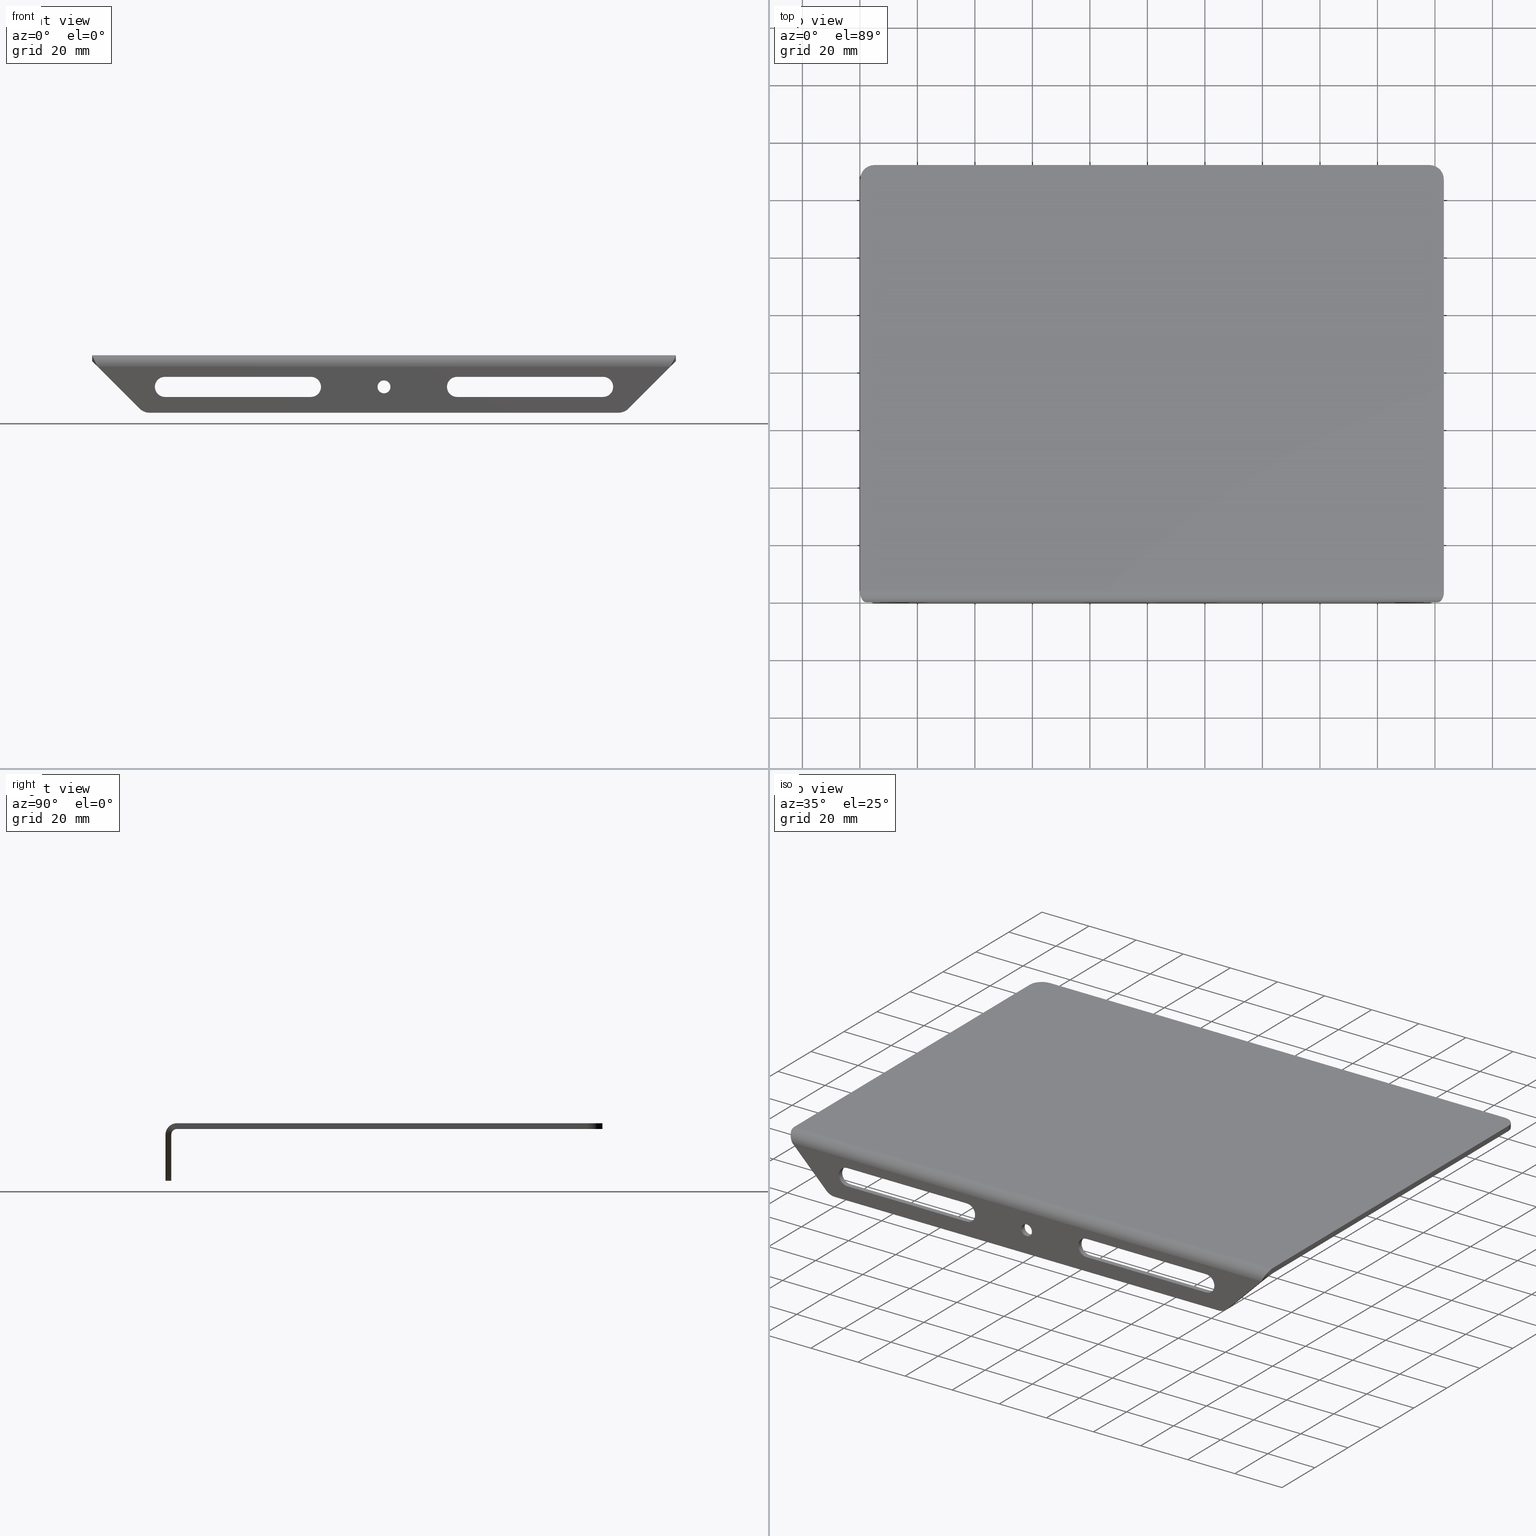
[diagram: canonical four-view strip — front | top / right | iso, engineering-drawing reading convention]
A machine part, canonical four-view strip (front | top / right | iso — engineering-drawing reading convention). The complete STEP part file that produces these views, byte-faithful:
ISO-10303-21;
HEADER;
FILE_DESCRIPTION (( 'STEP AP203' ),
    '1' );
FILE_NAME ('13.1.4.10_GZF-PDH152A_ƽ��������壬203mmx152mm.STEP',
    '2022-11-01T02:42:46',
    ( '' ),
    ( '' ),
    'SwSTEP 2.0',
    'SolidWorks 2021',
    '' );
FILE_SCHEMA (( 'CONFIG_CONTROL_DESIGN' ));
ENDSEC;

DATA;
#1 = DIRECTION ( 'NONE',  ( 0.7071067811865429098, 0.000000000000000000, 0.7071067811865522357 ) ) ;
#2 = LINE ( 'NONE', #314, #74 ) ;
#3 = CARTESIAN_POINT ( 'NONE',  ( 25.39999999999999858, 2.000000000000000000, -11.00000000000000178 ) ) ;
#4 = ORIENTED_EDGE ( 'NONE', *, *, #66, .T. ) ;
#5 = DIRECTION ( 'NONE',  ( -0.000000000000000000, 0.000000000000000000, 1.000000000000000000 ) ) ;
#6 = ORIENTED_EDGE ( 'NONE', *, *, #55, .T. ) ;
#7 = AXIS2_PLACEMENT_3D ( 'NONE', #155, #802, #425 ) ;
#8 = EDGE_CURVE ( 'NONE', #365, #279, #709, .T. ) ;
#9 = ORIENTED_EDGE ( 'NONE', *, *, #774, .T. ) ;
#10 = CARTESIAN_POINT ( 'NONE',  ( 203.0999999999999943, 146.9999999999999716, 0.000000000000000000 ) ) ;
#11 = APPROVAL_DATE_TIME ( #71, #481 ) ;
#12 = EDGE_LOOP ( 'NONE', ( #1007, #284, #832, #230 ) ) ;
#13 = CYLINDRICAL_SURFACE ( 'NONE', #338, 3.500000000000001332 ) ;
#14 = ORIENTED_EDGE ( 'NONE', *, *, #839, .T. ) ;
#15 = CARTESIAN_POINT ( 'NONE',  ( 177.7999999999999829, -8.673617379884035472E-16, -11.00000000000000178 ) ) ;
#16 = CARTESIAN_POINT ( 'NONE',  ( 76.20000000000000284, 2.000000000000000000, -7.500000000000001776 ) ) ;
#17 = VERTEX_POINT ( 'NONE', #16 ) ;
#18 = EDGE_CURVE ( 'NONE', #406, #847, #173, .T. ) ;
#19 = CARTESIAN_POINT ( 'NONE',  ( 0.09999999999981827592, 3.167333600214277567, -1.466666666666426311 ) ) ;
#20 = CIRCLE ( 'NONE', #204, 2.249999999999996891 ) ;
#21 = DIRECTION ( 'NONE',  ( -0.000000000000000000, 1.000000000000000000, -0.000000000000000000 ) ) ;
#22 = EDGE_CURVE ( 'NONE', #717, #917, #496, .T. ) ;
#23 = CARTESIAN_POINT ( 'NONE',  ( 0.09999999999997054301, 146.9999999999999432, -1.999999999999998224 ) ) ;
#24 = ORIENTED_EDGE ( 'NONE', *, *, #511, .F. ) ;
#25 = CARTESIAN_POINT ( 'NONE',  ( 199.2000000000000455, 3.999999999999999112, -7.333333333333333037 ) ) ;
#26 = VECTOR ( 'NONE', #818, 1000.000000000000000 ) ;
#27 = DIRECTION ( 'NONE',  ( -1.000000000000000000, -0.000000000000000000, -0.000000000000000000 ) ) ;
#28 = LINE ( 'NONE', #962, #241 ) ;
#29 = EDGE_LOOP ( 'NONE', ( #1017, #602, #549, #253 ) ) ;
#30 = FACE_OUTER_BOUND ( 'NONE', #157, .T. ) ;
#31 = CARTESIAN_POINT ( 'NONE',  ( 183.1289321881347405, 0.000000000000000000, -20.00000000000000000 ) ) ;
#32 = EDGE_CURVE ( 'NONE', #933, #671, #493, .T. ) ;
#33 = DIRECTION ( 'NONE',  ( -0.000000000000000000, 1.000000000000000000, -0.000000000000000000 ) ) ;
#34 = EDGE_LOOP ( 'NONE', ( #68, #643, #787, #521 ) ) ;
#35 = AXIS2_PLACEMENT_3D ( 'NONE', #951, #329, #79 ) ;
#36 = CARTESIAN_POINT ( 'NONE',  ( 203.1999999999999886, 7.999999999999999112, -2.000000000000000444 ) ) ;
#37 = FACE_OUTER_BOUND ( 'NONE', #81, .T. ) ;
#38 = VECTOR ( 'NONE', #830, 1000.000000000000000 ) ;
#39 = DIRECTION ( 'NONE',  ( -0.000000000000000000, -0.000000000000000000, 1.000000000000000000 ) ) ;
#40 = ORIENTED_EDGE ( 'NONE', *, *, #505, .T. ) ;
#41 = CARTESIAN_POINT ( 'NONE',  ( 177.7999999999999829, 2.000000000000000000, -14.50000000000000178 ) ) ;
#42 = FACE_OUTER_BOUND ( 'NONE', #454, .T. ) ;
#43 = APPROVAL_ROLE ( '' ) ;
#44 = VECTOR ( 'NONE', #909, 1000.000000000000000 ) ;
#45 = DIRECTION ( 'NONE',  ( 0.000000000000000000, 1.000000000000000000, -0.000000000000000000 ) ) ;
#46 = EDGE_LOOP ( 'NONE', ( #161, #4, #360, #874, #866, #24 ) ) ;
#47 = DIRECTION ( 'NONE',  ( 2.081668171172168908E-15, 0.000000000000000000, 1.000000000000000000 ) ) ;
#48 = CARTESIAN_POINT ( 'NONE',  ( 1.999999999999974021, 0.000000000000000000, -4.000000000000000000 ) ) ;
#49 = APPROVAL_STATUS ( 'not_yet_approved' ) ;
#50 = CYLINDRICAL_SURFACE ( 'NONE', #780, 4.000000000000000000 ) ;
#51 = APPROVAL ( #627, 'δָ��' ) ;
#52 = ORIENTED_EDGE ( 'NONE', *, *, #828, .F. ) ;
#53 = CARTESIAN_POINT ( 'NONE',  ( -4.336808689942017736E-16, -3.999999999999997335, 0.000000000000000000 ) ) ;
#54 = CARTESIAN_POINT ( 'NONE',  ( 183.1289321881347405, 2.000000000000000000, -15.00000000000000000 ) ) ;
#55 = EDGE_CURVE ( 'NONE', #589, #638, #824, .T. ) ;
#56 = CARTESIAN_POINT ( 'NONE',  ( 101.5999999999999943, 2.000000000000000000, -13.24999999999999822 ) ) ;
#57 = VERTEX_POINT ( 'NONE', #228 ) ;
#58 = CARTESIAN_POINT ( 'NONE',  ( -4.336808689942017736E-16, 3.999999999999999112, 0.000000000000000000 ) ) ;
#59 = ORGANIZATION ( 'δָ��', 'δָ��', '' ) ;
#60 = AXIS2_PLACEMENT_3D ( 'NONE', #168, #312, #567 ) ;
#61 = PERSON_AND_ORGANIZATION ( #954, #59 ) ;
#62 = CARTESIAN_POINT ( 'NONE',  ( 127.0000000000000284, -8.673617379884035472E-16, -7.500000000000002665 ) ) ;
#63 = VERTEX_POINT ( 'NONE', #474 ) ;
#64 = DIRECTION ( 'NONE',  ( -1.225259087783363897E-16, 1.000000000000000000, 0.000000000000000000 ) ) ;
#65 = CARTESIAN_POINT ( 'NONE',  ( 0.000000000000000000, 0.000000000000000000, 0.000000000000000000 ) ) ;
#66 = EDGE_CURVE ( 'NONE', #111, #150, #2, .T. ) ;
#67 = CYLINDRICAL_SURFACE ( 'NONE', #127, 3.500000000000001332 ) ;
#68 = ORIENTED_EDGE ( 'NONE', *, *, #135, .F. ) ;
#69 = ADVANCED_FACE ( 'NONE', ( #971 ), #727, .F. ) ;
#70 = CARTESIAN_POINT ( 'NONE',  ( 0.3795479008074179594, 1.049987808574508019, -0.7590958016148465770 ) ) ;
#71 = DATE_AND_TIME ( #708, #539 ) ;
#72 = DIRECTION ( 'NONE',  ( -0.000000000000000000, 1.000000000000000000, -0.000000000000000000 ) ) ;
#73 = ADVANCED_FACE ( 'NONE', ( #887, #591, #191, #512 ), #411, .F. ) ;
#74 = VECTOR ( 'NONE', #236, 1000.000000000000000 ) ;
#75 = ORIENTED_EDGE ( 'NONE', *, *, #483, .F. ) ;
#76 =( BOUNDED_SURFACE ( )  B_SPLINE_SURFACE ( 3, 3, ( 
 ( #681, #607, #985, #280 ),
 ( #53, #211, #195, #996 ),
 ( #440, #599, #130, #123 ),
 ( #759, #285, #834, #136 ),
 ( #202, #366, #990, #528 ),
 ( #686, #840, #450, #980 ),
 ( #58, #750, #274, #594 ) ),
 .UNSPECIFIED., .T., .F., .T. ) 
 B_SPLINE_SURFACE_WITH_KNOTS ( ( 4, 3, 4 ),
 ( 4, 4 ),
 ( 0.000000000000000000, 0.5000000000000000000, 1.000000000000000000 ),
 ( 0.000000000000000000, 1.000000000000000000 ),
 .UNSPECIFIED. ) 
 GEOMETRIC_REPRESENTATION_ITEM ( )  RATIONAL_B_SPLINE_SURFACE ( (
 ( 1.000000000000000000, 1.000000000000000000, 1.000000000000000000, 1.000000000000000000),
 ( 0.3333333333333333703, 0.3333333333333333148, 0.3333333333333333148, 0.3333333333333333703),
 ( 0.3333333333333333703, 0.3333333333333333148, 0.3333333333333333148, 0.3333333333333333703),
 ( 1.000000000000000000, 1.000000000000000000, 1.000000000000000000, 1.000000000000000000),
 ( 0.3333333333333333703, 0.3333333333333333148, 0.3333333333333333148, 0.3333333333333333703),
 ( 0.3333333333333333703, 0.3333333333333333148, 0.3333333333333333148, 0.3333333333333333703),
 ( 1.000000000000000000, 1.000000000000000000, 1.000000000000000000, 1.000000000000000000) ) ) 
 REPRESENTATION_ITEM ( '' )  SURFACE ( )  );
#77 = CARTESIAN_POINT ( 'NONE',  ( 203.0999999999999091, 3.167333600213670497, -1.466666666666625707 ) ) ;
#78 = VERTEX_POINT ( 'NONE', #981 ) ;
#79 = DIRECTION ( 'NONE',  ( -1.000000000000000000, 0.000000000000000000, 3.414809992080329023E-17 ) ) ;
#80 = VERTEX_POINT ( 'NONE', #356 ) ;
#81 = EDGE_LOOP ( 'NONE', ( #843, #827, #316, #185, #612, #140 ) ) ;
#82 = PLANE ( 'NONE',  #298 ) ;
#83 = ORIENTED_EDGE ( 'NONE', *, *, #433, .F. ) ;
#84 = AXIS2_PLACEMENT_3D ( 'NONE', #426, #494, #438 ) ;
#85 = ORIENTED_EDGE ( 'NONE', *, *, #653, .F. ) ;
#86 = AXIS2_PLACEMENT_3D ( 'NONE', #396, #482, #92 ) ;
#87 = DIRECTION ( 'NONE',  ( 0.000000000000000000, 0.000000000000000000, -1.000000000000000000 ) ) ;
#88 = ORIENTED_EDGE ( 'NONE', *, *, #232, .F. ) ;
#89 = APPROVAL_PERSON_ORGANIZATION ( #61, #882, #43 ) ;
#90 = AXIS2_PLACEMENT_3D ( 'NONE', #640, #407, #934 ) ;
#91 = ORIENTED_EDGE ( 'NONE', *, *, #784, .T. ) ;
#92 = DIRECTION ( 'NONE',  ( 0.000000000000000000, 0.000000000000000000, 1.000000000000000000 ) ) ;
#93 = CARTESIAN_POINT ( 'NONE',  ( 201.2000000000000171, 0.000000000000000000, -4.000000000000000000 ) ) ;
#94 = CARTESIAN_POINT ( 'NONE',  ( 76.20000000000000284, -8.673617379884035472E-16, -14.50000000000000178 ) ) ;
#95 = ORIENTED_EDGE ( 'NONE', *, *, #621, .F. ) ;
#96 = ADVANCED_FACE ( 'NONE', ( #37 ), #349, .F. ) ;
#97 = DIRECTION ( 'NONE',  ( -0.000000000000000000, 1.000000000000000000, -0.000000000000000000 ) ) ;
#98 = LINE ( 'NONE', #103, #421 ) ;
#99 = CARTESIAN_POINT ( 'NONE',  ( 177.7999999999999829, -8.673617379884035472E-16, -14.50000000000000178 ) ) ;
#100 = ORIENTED_EDGE ( 'NONE', *, *, #706, .T. ) ;
#101 = CARTESIAN_POINT ( 'NONE',  ( 199.2000000000000455, 3.999999999999999112, -8.000000000000000000 ) ) ;
#102 = CIRCLE ( 'NONE', #987, 5.000000000000000888 ) ;
#103 = CARTESIAN_POINT ( 'NONE',  ( 25.39999999999999858, -8.673617379884035472E-16, -14.50000000000000000 ) ) ;
#104 = DIRECTION ( 'NONE',  ( 1.000000000000000000, 0.000000000000000000, 1.707404996040164512E-17 ) ) ;
#105 = ORIENTED_EDGE ( 'NONE', *, *, #692, .T. ) ;
#106 = CARTESIAN_POINT ( 'NONE',  ( 199.2000000000000739, 0.000000000000000000, -6.000000000000000888 ) ) ;
#107 = EDGE_CURVE ( 'NONE', #1000, #406, #423, .T. ) ;
#108 = DIRECTION ( 'NONE',  ( 0.000000000000000000, -0.000000000000000000, 1.000000000000000000 ) ) ;
#109 = VECTOR ( 'NONE', #690, 1000.000000000000000 ) ;
#110 = CARTESIAN_POINT ( 'NONE',  ( 203.0999999999999943, 3.999999999999997335, -2.000000000000000000 ) ) ;
#111 = VERTEX_POINT ( 'NONE', #669 ) ;
#112 = CARTESIAN_POINT ( 'NONE',  ( 203.2000000000000171, -2.666666666666667851, -0.6666666666666662966 ) ) ;
#113 = EDGE_CURVE ( 'NONE', #854, #365, #102, .T. ) ;
#114 = DIRECTION ( 'NONE',  ( -1.000000000000000000, -0.000000000000000000, -0.000000000000000000 ) ) ;
#115 = CARTESIAN_POINT ( 'NONE',  ( 5.100000000000005862, 151.9999999999999716, -1.999999999999998224 ) ) ;
#116 = VERTEX_POINT ( 'NONE', #31 ) ;
#117 = CIRCLE ( 'NONE', #534, 2.000000000000000000 ) ;
#118 = CARTESIAN_POINT ( 'NONE',  ( 203.2000000000000171, 10.66666666666667140, -0.6666666666666676289 ) ) ;
#119 = LINE ( 'NONE', #902, #908 ) ;
#120 = CIRCLE ( 'NONE', #86, 2.249999999999996891 ) ;
#121 = DIRECTION ( 'NONE',  ( 0.000000000000000000, 1.000000000000000000, 0.000000000000000000 ) ) ;
#122 = ORIENTED_EDGE ( 'NONE', *, *, #839, .F. ) ;
#123 = CARTESIAN_POINT ( 'NONE',  ( 3.999999999999948930, 2.602085213965210247E-15, -6.000000000000000888 ) ) ;
#124 = DIRECTION ( 'NONE',  ( 0.000000000000000000, 0.000000000000000000, 1.000000000000000000 ) ) ;
#125 = AXIS2_PLACEMENT_3D ( 'NONE', #132, #367, #225 ) ;
#126 = DATE_AND_TIME ( #537, #401 ) ;
#127 = AXIS2_PLACEMENT_3D ( 'NONE', #296, #597, #214 ) ;
#128 = CARTESIAN_POINT ( 'NONE',  ( 5.100000000000005862, 151.9999999999999716, 0.000000000000000000 ) ) ;
#129 = ORIENTED_EDGE ( 'NONE', *, *, #383, .F. ) ;
#130 = CARTESIAN_POINT ( 'NONE',  ( 3.999999999999949818, -1.333333333333331261, -6.666666666666671404 ) ) ;
#131 = ADVANCED_FACE ( 'NONE', ( #42 ), #276, .T. ) ;
#132 = CARTESIAN_POINT ( 'NONE',  ( 203.1999999999999886, 0.000000000000000000, 0.000000000000000000 ) ) ;
#133 = DIRECTION ( 'NONE',  ( -1.000000000000000000, -0.000000000000000000, -0.000000000000000000 ) ) ;
#134 = ORIENTED_EDGE ( 'NONE', *, *, #784, .F. ) ;
#135 = EDGE_CURVE ( 'NONE', #545, #57, #20, .T. ) ;
#136 = CARTESIAN_POINT ( 'NONE',  ( 3.999999999999948042, 3.999999999999999112, -6.000000000000000000 ) ) ;
#137 = CARTESIAN_POINT ( 'NONE',  ( 198.0999999999999659, 152.0000000000000000, 0.000000000000000000 ) ) ;
#138 = PERSON_AND_ORGANIZATION_ROLE ( 'design_owner' ) ;
#139 = LINE ( 'NONE', #921, #959 ) ;
#140 = ORIENTED_EDGE ( 'NONE', *, *, #871, .F. ) ;
#141 = CC_DESIGN_APPROVAL ( #51, ( #794 ) ) ;
#142 = DIRECTION ( 'NONE',  ( -3.414809992080330256E-17, 0.000000000000000000, -1.000000000000000000 ) ) ;
#143 = EDGE_CURVE ( 'NONE', #332, #439, #654, .T. ) ;
#144 = CARTESIAN_POINT ( 'NONE',  ( 5.100000000000005862, 151.9999999999999716, -20.00100000000000122 ) ) ;
#145 = EDGE_CURVE ( 'NONE', #598, #111, #578, .T. ) ;
#146 = ORIENTED_EDGE ( 'NONE', *, *, #205, .T. ) ;
#147 = CARTESIAN_POINT ( 'NONE',  ( 198.0999999999999943, 147.0000000000000000, -1.999999999999998224 ) ) ;
#148 = EDGE_CURVE ( 'NONE', #924, #17, #119, .T. ) ;
#149 = LINE ( 'NONE', #62, #476 ) ;
#150 = VERTEX_POINT ( 'NONE', #197 ) ;
#151 = DIRECTION ( 'NONE',  ( 0.000000000000000000, -1.000000000000000000, -0.000000000000000000 ) ) ;
#152 = VERTEX_POINT ( 'NONE', #519 ) ;
#153 = PLANE ( 'NONE',  #35 ) ;
#154 = APPROVAL_ROLE ( '' ) ;
#155 = CARTESIAN_POINT ( 'NONE',  ( 101.5999999999999943, -8.673617379884035472E-16, -11.00000000000000178 ) ) ;
#156 = AXIS2_PLACEMENT_3D ( 'NONE', #344, #451, #124 ) ;
#157 = EDGE_LOOP ( 'NONE', ( #176, #984, #83, #989 ) ) ;
#158 = DIRECTION ( 'NONE',  ( 0.000000000000000000, 1.000000000000000000, -0.000000000000000000 ) ) ;
#159 = VECTOR ( 'NONE', #33, 1000.000000000000000 ) ;
#160 = ORIENTED_EDGE ( 'NONE', *, *, #462, .T. ) ;
#161 = ORIENTED_EDGE ( 'NONE', *, *, #844, .T. ) ;
#162 = FACE_OUTER_BOUND ( 'NONE', #29, .T. ) ;
#163 = DATE_AND_TIME ( #397, #182 ) ;
#164 = ORIENTED_EDGE ( 'NONE', *, *, #8, .F. ) ;
#165 = CARTESIAN_POINT ( 'NONE',  ( 101.5999999999999943, 2.000000000000000000, -11.00000000000000178 ) ) ;
#166 = VECTOR ( 'NONE', #97, 1000.000000000000000 ) ;
#167 = ORIENTED_EDGE ( 'NONE', *, *, #793, .T. ) ;
#168 = CARTESIAN_POINT ( 'NONE',  ( 5.099999999999970335, 146.9999999999999716, -20.00100000000000122 ) ) ;
#169 = ORIENTED_EDGE ( 'NONE', *, *, #310, .T. ) ;
#170 = EDGE_CURVE ( 'NONE', #671, #208, #98, .T. ) ;
#171 = EDGE_LOOP ( 'NONE', ( #785, #471, #491, #577 ) ) ;
#172 = DIRECTION ( 'NONE',  ( -0.000000000000000000, -0.000000000000000000, 1.000000000000000000 ) ) ;
#173 = LINE ( 'NONE', #872, #952 ) ;
#174 =( BOUNDED_CURVE ( )  B_SPLINE_CURVE ( 3, ( #570, #469, #552, #773 ),
 .UNSPECIFIED., .F., .T. ) 
 B_SPLINE_CURVE_WITH_KNOTS ( ( 4, 4 ),
 ( 0.3175604292915076288, 1.570796326794896558 ),
 .UNSPECIFIED. ) 
 CURVE ( )  GEOMETRIC_REPRESENTATION_ITEM ( )  RATIONAL_B_SPLINE_CURVE ( ( 1.000000000000000000, 0.8733436007089550035, 0.8733436007089550035, 1.000000000000000000 ) ) 
 REPRESENTATION_ITEM ( '' )  );
#175 = DIRECTION ( 'NONE',  ( -3.414809992080332105E-17, 0.000000000000000000, 1.000000000000000000 ) ) ;
#176 = ORIENTED_EDGE ( 'NONE', *, *, #418, .T. ) ;
#177 = CARTESIAN_POINT ( 'NONE',  ( 177.7999999999999829, -8.673617379884035472E-16, -7.500000000000000000 ) ) ;
#178 =( BOUNDED_SURFACE ( )  B_SPLINE_SURFACE ( 3, 3, ( 
 ( #817, #895, #581, #810 ),
 ( #821, #956, #500, #106 ),
 ( #970, #112, #256, #590 ),
 ( #190, #510, #964, #422 ),
 ( #353, #118, #739, #36 ),
 ( #735, #348, #667, #434 ),
 ( #101, #25, #880, #251 ) ),
 .UNSPECIFIED., .T., .F., .T. ) 
 B_SPLINE_SURFACE_WITH_KNOTS ( ( 4, 3, 4 ),
 ( 4, 4 ),
 ( 0.000000000000000000, 0.5000000000000000000, 1.000000000000000000 ),
 ( 0.000000000000000000, 1.000000000000000000 ),
 .UNSPECIFIED. ) 
 GEOMETRIC_REPRESENTATION_ITEM ( )  RATIONAL_B_SPLINE_SURFACE ( (
 ( 1.000000000000000000, 1.000000000000000000, 1.000000000000000000, 1.000000000000000000),
 ( 0.3333333333333333703, 0.3333333333333333148, 0.3333333333333333148, 0.3333333333333333703),
 ( 0.3333333333333333703, 0.3333333333333333148, 0.3333333333333333148, 0.3333333333333333703),
 ( 1.000000000000000000, 1.000000000000000000, 1.000000000000000000, 1.000000000000000000),
 ( 0.3333333333333333703, 0.3333333333333333148, 0.3333333333333333148, 0.3333333333333333703),
 ( 0.3333333333333333703, 0.3333333333333333148, 0.3333333333333333148, 0.3333333333333333703),
 ( 1.000000000000000000, 1.000000000000000000, 1.000000000000000000, 1.000000000000000000) ) ) 
 REPRESENTATION_ITEM ( '' )  SURFACE ( )  );
#179 = DIRECTION ( 'NONE',  ( 0.000000000000000000, -1.000000000000000000, -0.000000000000000000 ) ) ;
#180 = ORIENTED_EDGE ( 'NONE', *, *, #483, .T. ) ;
#181 = PRODUCT_RELATED_PRODUCT_CATEGORY ( 'detail', '', ( #603 ) ) ;
#182 = LOCAL_TIME ( 10, 42, 46.00000000000000000, #645 ) ;
#183 = PLANE ( 'NONE',  #84 ) ;
#184 = AXIS2_PLACEMENT_3D ( 'NONE', #635, #318, #240 ) ;
#185 = ORIENTED_EDGE ( 'NONE', *, *, #961, .F. ) ;
#186 = ADVANCED_FACE ( 'NONE', ( #958 ), #502, .F. ) ;
#187 = CARTESIAN_POINT ( 'NONE',  ( 127.0000000000000284, -8.673617379884035472E-16, -7.500000000000002665 ) ) ;
#188 = CYLINDRICAL_SURFACE ( 'NONE', #912, 5.000000000000004441 ) ;
#189 = ORIENTED_EDGE ( 'NONE', *, *, #148, .T. ) ;
#190 = CARTESIAN_POINT ( 'NONE',  ( 203.1999999999999886, 4.000000000000000000, 0.000000000000000000 ) ) ;
#191 = FACE_BOUND ( 'NONE', #527, .T. ) ;
#192 = CARTESIAN_POINT ( 'NONE',  ( 76.20000000000000284, -8.673617379884035472E-16, -14.50000000000000178 ) ) ;
#193 = ORIENTED_EDGE ( 'NONE', *, *, #18, .T. ) ;
#194 = EDGE_LOOP ( 'NONE', ( #164, #14, #691, #485 ) ) ;
#195 = CARTESIAN_POINT ( 'NONE',  ( -1.445602896647339410E-16, -1.333333333333331261, -1.333333333333333925 ) ) ;
#196 = AXIS2_PLACEMENT_3D ( 'NONE', #977, #892, #339 ) ;
#197 = CARTESIAN_POINT ( 'NONE',  ( 0.09999999999996816991, 146.9999999999999432, 0.000000000000000000 ) ) ;
#198 = ADVANCED_FACE ( 'NONE', ( #582 ), #813, .T. ) ;
#199 = LINE ( 'NONE', #144, #490 ) ;
#200 = ORIENTED_EDGE ( 'NONE', *, *, #107, .F. ) ;
#201 = EDGE_CURVE ( 'NONE', #80, #781, #272, .T. ) ;
#202 = CARTESIAN_POINT ( 'NONE',  ( 3.999999999999947597, 11.99999999999999645, -7.999999999999999112 ) ) ;
#203 = CARTESIAN_POINT ( 'NONE',  ( 16.53553390593249972, 2.000000000000001776, -18.53553390593271288 ) ) ;
#204 = AXIS2_PLACEMENT_3D ( 'NONE', #595, #497, #334 ) ;
#205 = EDGE_CURVE ( 'NONE', #420, #717, #841, .T. ) ;
#206 = AXIS2_PLACEMENT_3D ( 'NONE', #704, #637, #480 ) ;
#207 = LINE ( 'NONE', #999, #209 ) ;
#208 = VERTEX_POINT ( 'NONE', #676 ) ;
#209 = VECTOR ( 'NONE', #849, 1000.000000000000000 ) ;
#210 =( BOUNDED_CURVE ( )  B_SPLINE_CURVE ( 3, ( #306, #77, #466, #385 ),
 .UNSPECIFIED., .F., .T. ) 
 B_SPLINE_CURVE_WITH_KNOTS ( ( 4, 4 ),
 ( 0.000000000000000000, 0.001999999999999999174 ),
 .UNSPECIFIED. ) 
 CURVE ( )  GEOMETRIC_REPRESENTATION_ITEM ( )  RATIONAL_B_SPLINE_CURVE ( ( 0.7620499723879277099, 0.7620499723879277099, 0.7620499723879277099, 0.7620499723879277099 ) ) 
 REPRESENTATION_ITEM ( '' )  );
#211 = CARTESIAN_POINT ( 'NONE',  ( -2.891205793294678819E-16, -2.666666666666665186, -0.6666666666666669627 ) ) ;
#212 = ADVANCED_BREP_SHAPE_REPRESENTATION ( '13.1.4.10_GZF-PDH152A_ƽ��������壬203mmx152mm', ( #536, #233 ), #501 ) ;
#213 = DIRECTION ( 'NONE',  ( -1.000000000000000000, -0.000000000000000000, 3.414809992080329023E-17 ) ) ;
#214 = DIRECTION ( 'NONE',  ( 0.000000000000000000, 0.000000000000000000, 1.000000000000000000 ) ) ;
#215 = ORIENTED_EDGE ( 'NONE', *, *, #32, .T. ) ;
#216 = VECTOR ( 'NONE', #268, 1000.000000000000000 ) ;
#217 = DIRECTION ( 'NONE',  ( -0.000000000000000000, -0.000000000000000000, 1.000000000000000000 ) ) ;
#218 = FACE_OUTER_BOUND ( 'NONE', #224, .T. ) ;
#219 = ORIENTED_EDGE ( 'NONE', *, *, #323, .T. ) ;
#220 = APPROVAL_PERSON_ORGANIZATION ( #235, #51, #154 ) ;
#221 = ADVANCED_FACE ( 'NONE', ( #293 ), #362, .T. ) ;
#222 = CARTESIAN_POINT ( 'NONE',  ( 127.0000000000000000, -8.673617379884035472E-16, -14.50000000000000000 ) ) ;
#223 = DIRECTION ( 'NONE',  ( -1.000000000000000000, -1.225259087783363897E-16, -0.000000000000000000 ) ) ;
#224 = EDGE_LOOP ( 'NONE', ( #899, #560, #336, #305 ) ) ;
#225 = DIRECTION ( 'NONE',  ( -1.000000000000000000, 0.000000000000000000, -0.000000000000000000 ) ) ;
#226 = DIRECTION ( 'NONE',  ( 0.000000000000000000, 0.000000000000000000, -1.000000000000000000 ) ) ;
#227 = CALENDAR_DATE ( 2022, 1, 11 ) ;
#228 = CARTESIAN_POINT ( 'NONE',  ( 101.5999999999999943, -8.673617379884035472E-16, -8.750000000000003553 ) ) ;
#229 = DIRECTION ( 'NONE',  ( 0.000000000000000000, 1.000000000000000000, -0.000000000000000000 ) ) ;
#230 = ORIENTED_EDGE ( 'NONE', *, *, #648, .F. ) ;
#231 = DESIGN_CONTEXT ( 'detailed design', #286, 'design' ) ;
#232 = EDGE_CURVE ( 'NONE', #264, #328, #387, .T. ) ;
#233 = AXIS2_PLACEMENT_3D ( 'NONE', #65, #746, #992 ) ;
#234 = CARTESIAN_POINT ( 'NONE',  ( 101.5999999999999943, -8.673617379884035472E-16, -11.00000000000000178 ) ) ;
#235 = PERSON_AND_ORGANIZATION ( #954, #59 ) ;
#236 = DIRECTION ( 'NONE',  ( -1.225259087783363651E-16, 1.000000000000000000, -0.000000000000000000 ) ) ;
#237 = FACE_OUTER_BOUND ( 'NONE', #445, .T. ) ;
#238 = ORIENTED_EDGE ( 'NONE', *, *, #613, .T. ) ;
#239 = EDGE_CURVE ( 'NONE', #589, #150, #608, .T. ) ;
#240 = DIRECTION ( 'NONE',  ( 0.000000000000000000, 0.000000000000000000, -1.000000000000000000 ) ) ;
#241 = VECTOR ( 'NONE', #737, 1000.000000000000000 ) ;
#242 = ORIENTED_EDGE ( 'NONE', *, *, #871, .T. ) ;
#243 = FACE_OUTER_BOUND ( 'NONE', #876, .T. ) ;
#244 = ORIENTED_EDGE ( 'NONE', *, *, #437, .T. ) ;
#245 = CARTESIAN_POINT ( 'NONE',  ( 127.0000000000000284, -8.673617379884035472E-16, -7.500000000000002665 ) ) ;
#246 = ORIENTED_EDGE ( 'NONE', *, *, #22, .T. ) ;
#247 = EDGE_CURVE ( 'NONE', #499, #758, #573, .T. ) ;
#248 = FACE_BOUND ( 'NONE', #250, .T. ) ;
#249 = VECTOR ( 'NONE', #172, 1000.000000000000000 ) ;
#250 = EDGE_LOOP ( 'NONE', ( #955, #894, #260, #489 ) ) ;
#251 = CARTESIAN_POINT ( 'NONE',  ( 199.2000000000000455, 3.999999999999999112, -6.000000000000000000 ) ) ;
#252 = ADVANCED_FACE ( 'NONE', ( #756 ), #927, .T. ) ;
#253 = ORIENTED_EDGE ( 'NONE', *, *, #721, .T. ) ;
#254 = CARTESIAN_POINT ( 'NONE',  ( 25.39999999999999858, -8.673617379884035472E-16, -7.500000000000001776 ) ) ;
#255 = ORIENTED_EDGE ( 'NONE', *, *, #719, .F. ) ;
#256 = CARTESIAN_POINT ( 'NONE',  ( 203.2000000000000171, -1.333333333333333925, -1.333333333333333481 ) ) ;
#257 = CIRCLE ( 'NONE', #833, 3.499999999999999556 ) ;
#258 = AXIS2_PLACEMENT_3D ( 'NONE', #825, #916, #684 ) ;
#259 = DIRECTION ( 'NONE',  ( 1.000000000000000000, 0.000000000000000000, 1.707404996040164512E-17 ) ) ;
#260 = ORIENTED_EDGE ( 'NONE', *, *, #1006, .F. ) ;
#261 = CARTESIAN_POINT ( 'NONE',  ( 198.0999999999999659, 152.0000000000000000, -20.00100000000000122 ) ) ;
#262 = DIRECTION ( 'NONE',  ( -1.225259087783363897E-16, 1.000000000000000000, 0.000000000000000000 ) ) ;
#263 = CARTESIAN_POINT ( 'NONE',  ( 1.999999999999974021, 2.000000000000000000, -4.000000000000000000 ) ) ;
#264 = VERTEX_POINT ( 'NONE', #137 ) ;
#265 = CARTESIAN_POINT ( 'NONE',  ( 101.5999999999999943, -8.673617379884035472E-16, -11.00000000000000178 ) ) ;
#266 = DIRECTION ( 'NONE',  ( -1.000000000000000000, 0.000000000000000000, 0.000000000000000000 ) ) ;
#267 = ORIENTED_EDGE ( 'NONE', *, *, #651, .T. ) ;
#268 = DIRECTION ( 'NONE',  ( -0.000000000000000000, 1.000000000000000000, -0.000000000000000000 ) ) ;
#269 = CARTESIAN_POINT ( 'NONE',  ( 203.1999999999999886, 3.999999999999995559, 0.000000000000000000 ) ) ;
#270 = CARTESIAN_POINT ( 'NONE',  ( 201.2000000000000171, 0.000000000000000000, -4.000000000000000000 ) ) ;
#271 = ORIENTED_EDGE ( 'NONE', *, *, #529, .F. ) ;
#272 =( BOUNDED_CURVE ( )  B_SPLINE_CURVE ( 3, ( #998, #845, #442, #456 ),
 .UNSPECIFIED., .F., .T. ) 
 B_SPLINE_CURVE_WITH_KNOTS ( ( 4, 4 ),
 ( 1.570796326794896558, 2.824032224298361093 ),
 .UNSPECIFIED. ) 
 CURVE ( )  GEOMETRIC_REPRESENTATION_ITEM ( )  RATIONAL_B_SPLINE_CURVE ( ( 1.000000000000000000, 0.8733436007089402375, 0.8733436007089402375, 1.000000000000000000 ) ) 
 REPRESENTATION_ITEM ( '' )  );
#273 = EDGE_LOOP ( 'NONE', ( #935, #593, #763, #189 ) ) ;
#274 = CARTESIAN_POINT ( 'NONE',  ( -1.445602896647339163E-16, 3.999999999999999112, -1.333333333333333259 ) ) ;
#275 = ADVANCED_FACE ( 'NONE', ( #524 ), #380, .F. ) ;
#276 = PLANE ( 'NONE',  #196 ) ;
#277 = EDGE_CURVE ( 'NONE', #890, #589, #373, .T. ) ;
#278 = CARTESIAN_POINT ( 'NONE',  ( 127.0000000000000000, -8.673617379884035472E-16, -11.00000000000000355 ) ) ;
#279 = VERTEX_POINT ( 'NONE', #913 ) ;
#280 = CARTESIAN_POINT ( 'NONE',  ( 0.000000000000000000, 3.999999999999999112, -2.000000000000000000 ) ) ;
#281 = EDGE_CURVE ( 'NONE', #78, #208, #907, .T. ) ;
#282 = CARTESIAN_POINT ( 'NONE',  ( 203.1999999999999886, 2.000000000000000000, -20.00000000000000000 ) ) ;
#283 = CARTESIAN_POINT ( 'NONE',  ( 203.1000000000000227, 3.375500200160327591, -2.099999999999943689 ) ) ;
#284 = ORIENTED_EDGE ( 'NONE', *, *, #695, .F. ) ;
#285 = CARTESIAN_POINT ( 'NONE',  ( 3.999999999999948042, 3.999999999999999112, -7.333333333333333037 ) ) ;
#286 = APPLICATION_CONTEXT ( 'configuration controlled 3d designs of mechanical parts and assemblies' ) ;
#287 = DIRECTION ( 'NONE',  ( 0.000000000000000000, -1.000000000000000000, -0.000000000000000000 ) ) ;
#288 = AXIS2_PLACEMENT_3D ( 'NONE', #1008, #751, #447 ) ;
#289 = EDGE_CURVE ( 'NONE', #403, #415, #614, .T. ) ;
#290 = DIRECTION ( 'NONE',  ( -1.000000000000000000, -0.000000000000000000, -0.000000000000000000 ) ) ;
#291 = EDGE_LOOP ( 'NONE', ( #246, #432, #968, #868, #838, #52 ) ) ;
#292 = VECTOR ( 'NONE', #357, 1000.000000000000000 ) ;
#293 = FACE_OUTER_BOUND ( 'NONE', #809, .T. ) ;
#294 = CC_DESIGN_PERSON_AND_ORGANIZATION_ASSIGNMENT ( #467, #392, ( #794 ) ) ;
#295 = APPROVAL_DATE_TIME ( #688, #882 ) ;
#296 = CARTESIAN_POINT ( 'NONE',  ( 177.7999999999999829, -8.673617379884035472E-16, -11.00000000000000178 ) ) ;
#297 = ADVANCED_FACE ( 'NONE', ( #991 ), #535, .F. ) ;
#298 = AXIS2_PLACEMENT_3D ( 'NONE', #1015, #930, #1 ) ;
#299 = CYLINDRICAL_SURFACE ( 'NONE', #826, 3.499999999999999556 ) ;
#300 = LINE ( 'NONE', #623, #44 ) ;
#301 = ORIENTED_EDGE ( 'NONE', *, *, #618, .T. ) ;
#302 = CARTESIAN_POINT ( 'NONE',  ( 185.2000000000002160, 1.734723475976807094E-15, -20.00000000000000000 ) ) ;
#303 = COORDINATED_UNIVERSAL_TIME_OFFSET ( 8, 0, .AHEAD. ) ;
#304 = CARTESIAN_POINT ( 'NONE',  ( 76.20000000000000284, -8.673617379884035472E-16, -11.00000000000000355 ) ) ;
#305 = ORIENTED_EDGE ( 'NONE', *, *, #706, .F. ) ;
#306 = CARTESIAN_POINT ( 'NONE',  ( 203.1000000000000227, 3.375500200160328479, -2.099999999999943689 ) ) ;
#307 = EDGE_CURVE ( 'NONE', #572, #63, #619, .T. ) ;
#308 = CARTESIAN_POINT ( 'NONE',  ( 5.099999999999970335, 146.9999999999999716, -1.999999999999998224 ) ) ;
#309 = DIRECTION ( 'NONE',  ( 0.000000000000000000, 1.000000000000000000, 0.000000000000000000 ) ) ;
#310 = EDGE_CURVE ( 'NONE', #116, #420, #1005, .T. ) ;
#311 = ORIENTED_EDGE ( 'NONE', *, *, #307, .T. ) ;
#312 = DIRECTION ( 'NONE',  ( -0.000000000000000000, -0.000000000000000000, 1.000000000000000000 ) ) ;
#313 = APPROVAL_DATE_TIME ( #163, #51 ) ;
#314 = CARTESIAN_POINT ( 'NONE',  ( 0.09999999999997054301, 146.9999999999999432, 0.000000000000000000 ) ) ;
#315 = CARTESIAN_POINT ( 'NONE',  ( 203.1999999999999886, 2.000000000000000000, 0.000000000000000000 ) ) ;
#316 = ORIENTED_EDGE ( 'NONE', *, *, #542, .T. ) ;
#317 = CC_DESIGN_SECURITY_CLASSIFICATION ( #794, ( #975 ) ) ;
#318 = DIRECTION ( 'NONE',  ( 0.000000000000000000, 1.000000000000000000, -0.000000000000000000 ) ) ;
#319 = DATE_TIME_ROLE ( 'classification_date' ) ;
#320 = DIRECTION ( 'NONE',  ( 0.000000000000000000, 0.000000000000000000, -1.000000000000000000 ) ) ;
#321 = ADVANCED_FACE ( 'NONE', ( #376 ), #299, .F. ) ;
#322 = EDGE_LOOP ( 'NONE', ( #662, #504, #95, #879 ) ) ;
#323 = EDGE_CURVE ( 'NONE', #427, #862, #120, .T. ) ;
#324 = DIRECTION ( 'NONE',  ( 1.000000000000000000, 1.438112726198389480E-16, 0.000000000000000000 ) ) ;
#325 = PERSON_AND_ORGANIZATION ( #954, #59 ) ;
#326 = ORIENTED_EDGE ( 'NONE', *, *, #8, .T. ) ;
#327 = ADVANCED_FACE ( 'NONE', ( #940 ), #712, .T. ) ;
#328 = VERTEX_POINT ( 'NONE', #10 ) ;
#329 = DIRECTION ( 'NONE',  ( -3.414809992080329023E-17, 0.000000000000000000, -1.000000000000000000 ) ) ;
#330 = DIRECTION ( 'NONE',  ( -0.000000000000000000, 1.000000000000000000, -0.000000000000000000 ) ) ;
#331 = VECTOR ( 'NONE', #642, 1000.000000000000000 ) ;
#332 = VERTEX_POINT ( 'NONE', #245 ) ;
#333 = CARTESIAN_POINT ( 'NONE',  ( 0.09999999999998812616, 3.375500200160176600, -2.099999999999942801 ) ) ;
#334 = DIRECTION ( 'NONE',  ( 0.000000000000000000, 0.000000000000000000, 1.000000000000000000 ) ) ;
#335 = LINE ( 'NONE', #742, #663 ) ;
#336 = ORIENTED_EDGE ( 'NONE', *, *, #774, .F. ) ;
#337 = CARTESIAN_POINT ( 'NONE',  ( 0.09999999999980882515, 2.751000400322565653, -0.1999999999992623234 ) ) ;
#338 = AXIS2_PLACEMENT_3D ( 'NONE', #304, #718, #948 ) ;
#339 = DIRECTION ( 'NONE',  ( -1.000000000000000000, 0.000000000000000000, 0.000000000000000000 ) ) ;
#340 = CIRCLE ( 'NONE', #659, 5.000000000000001776 ) ;
#341 = EDGE_CURVE ( 'NONE', #820, #264, #488, .T. ) ;
#342 = LINE ( 'NONE', #732, #734 ) ;
#343 = ORIENTED_EDGE ( 'NONE', *, *, #754, .T. ) ;
#344 = CARTESIAN_POINT ( 'NONE',  ( 20.07106781186526234, 2.000000000000001776, -15.00000000000000178 ) ) ;
#345 = AXIS2_PLACEMENT_3D ( 'NONE', #716, #158, #87 ) ;
#346 = DIRECTION ( 'NONE',  ( 0.000000000000000000, 0.000000000000000000, 1.000000000000000000 ) ) ;
#347 = EDGE_LOOP ( 'NONE', ( #791, #410, #238, #219 ) ) ;
#348 = CARTESIAN_POINT ( 'NONE',  ( 199.2000000000001592, 10.66666666666667140, -7.333333333333335702 ) ) ;
#349 = CYLINDRICAL_SURFACE ( 'NONE', #771, 2.000000000000000000 ) ;
#350 = LINE ( 'NONE', #99, #689 ) ;
#351 = ORIENTED_EDGE ( 'NONE', *, *, #323, .F. ) ;
#352 = ADVANCED_FACE ( 'NONE', ( #722 ), #783, .F. ) ;
#353 = CARTESIAN_POINT ( 'NONE',  ( 203.1999999999999886, 12.00000000000000178, -9.797174393178823685E-16 ) ) ;
#354 = EDGE_CURVE ( 'NONE', #847, #551, #639, .T. ) ;
#355 = AXIS2_PLACEMENT_3D ( 'NONE', #616, #223, #601 ) ;
#356 = CARTESIAN_POINT ( 'NONE',  ( 201.2000000000000171, 2.000000000000000000, -4.000000000000000000 ) ) ;
#357 = DIRECTION ( 'NONE',  ( 0.7071067811865430208, 0.000000000000000000, -0.7071067811865521247 ) ) ;
#358 = ORIENTED_EDGE ( 'NONE', *, *, #828, .T. ) ;
#359 = EDGE_CURVE ( 'NONE', #439, #1000, #938, .T. ) ;
#360 = ORIENTED_EDGE ( 'NONE', *, *, #239, .F. ) ;
#361 = CARTESIAN_POINT ( 'NONE',  ( 203.1999999999999886, 2.000000000000000000, -4.000000000000000000 ) ) ;
#362 = CYLINDRICAL_SURFACE ( 'NONE', #473, 5.000000000000000888 ) ;
#363 = APPROVAL_ROLE ( '' ) ;
#364 = CARTESIAN_POINT ( 'NONE',  ( 5.100000000000005862, 151.9999999999999716, -1.999999999999998224 ) ) ;
#365 = VERTEX_POINT ( 'NONE', #865 ) ;
#366 = CARTESIAN_POINT ( 'NONE',  ( 3.999999999999948042, 10.66666666666666607, -7.333333333333333037 ) ) ;
#367 = DIRECTION ( 'NONE',  ( 0.000000000000000000, 0.000000000000000000, -1.000000000000000000 ) ) ;
#368 = CARTESIAN_POINT ( 'NONE',  ( 185.2000000000002160, 2.000000000000001776, -20.00000000000000000 ) ) ;
#369 = LOCAL_TIME ( 10, 42, 46.00000000000000000, #672 ) ;
#370 = ORIENTED_EDGE ( 'NONE', *, *, #793, .F. ) ;
#371 = CARTESIAN_POINT ( 'NONE',  ( 25.39999999999999858, -8.673617379884035472E-16, -7.500000000000001776 ) ) ;
#372 = CC_DESIGN_PERSON_AND_ORGANIZATION_ASSIGNMENT ( #325, #641, ( #975 ) ) ;
#373 = LINE ( 'NONE', #1001, #701 ) ;
#374 = CARTESIAN_POINT ( 'NONE',  ( 0.000000000000000000, 1.734723475976807094E-15, -2.000000000000000444 ) ) ;
#375 = ORIENTED_EDGE ( 'NONE', *, *, #462, .F. ) ;
#376 = FACE_OUTER_BOUND ( 'NONE', #322, .T. ) ;
#377 = CARTESIAN_POINT ( 'NONE',  ( 186.6644660940675067, 2.000000000000001776, -18.53553390593270223 ) ) ;
#378 = ORIENTED_EDGE ( 'NONE', *, *, #145, .F. ) ;
#379 = AXIS2_PLACEMENT_3D ( 'NONE', #278, #592, #889 ) ;
#380 = PLANE ( 'NONE',  #125 ) ;
#381 = CLOSED_SHELL ( 'NONE', ( #1009, #73, #252, #957, #96, #897, #275, #69, #321, #429, #995, #944, #967, #297, #814, #682, #465, #477, #852, #547, #221, #198, #131, #352, #186, #625, #604, #327 ) ) ;
#382 = LINE ( 'NONE', #532, #798 ) ;
#383 = EDGE_CURVE ( 'NONE', #697, #781, #587, .T. ) ;
#384 = ORIENTED_EDGE ( 'NONE', *, *, #205, .F. ) ;
#385 = CARTESIAN_POINT ( 'NONE',  ( 203.0999999999999943, 2.751000400320329220, -0.1999999999999970968 ) ) ;
#386 = EDGE_CURVE ( 'NONE', #57, #545, #920, .T. ) ;
#387 = CIRCLE ( 'NONE', #288, 5.000000000000004441 ) ;
#388 = CIRCLE ( 'NONE', #355, 4.000000000000000888 ) ;
#389 = ORIENTED_EDGE ( 'NONE', *, *, #754, .F. ) ;
#390 = VECTOR ( 'NONE', #699, 1000.000000000000000 ) ;
#391 = DIRECTION ( 'NONE',  ( -1.000000000000000000, 0.000000000000000000, -0.000000000000000000 ) ) ;
#392 = PERSON_AND_ORGANIZATION_ROLE ( 'classification_officer' ) ;
#393 = EDGE_LOOP ( 'NONE', ( #378, #949, #88, #1012, #85, #509 ) ) ;
#394 = DIRECTION ( 'NONE',  ( 0.000000000000000000, 1.000000000000000000, 0.000000000000000000 ) ) ;
#395 = ORIENTED_EDGE ( 'NONE', *, *, #143, .F. ) ;
#396 = CARTESIAN_POINT ( 'NONE',  ( 101.5999999999999943, 2.000000000000000000, -11.00000000000000178 ) ) ;
#397 = CALENDAR_DATE ( 2022, 1, 11 ) ;
#398 = ORIENTED_EDGE ( 'NONE', *, *, #107, .T. ) ;
#399 = AXIS2_PLACEMENT_3D ( 'NONE', #222, #142, #764 ) ;
#400 = ORIENTED_EDGE ( 'NONE', *, *, #790, .T. ) ;
#401 = LOCAL_TIME ( 10, 42, 46.00000000000000000, #596 ) ;
#402 = CARTESIAN_POINT ( 'NONE',  ( 20.07106781186526234, 2.000000000000000000, -15.00000000000000178 ) ) ;
#403 = VERTEX_POINT ( 'NONE', #644 ) ;
#404 = EDGE_CURVE ( 'NONE', #705, #890, #117, .T. ) ;
#405 = PLANE ( 'NONE',  #657 ) ;
#406 = VERTEX_POINT ( 'NONE', #546 ) ;
#407 = DIRECTION ( 'NONE',  ( 1.000000000000000000, 0.000000000000000000, 0.000000000000000000 ) ) ;
#408 = CARTESIAN_POINT ( 'NONE',  ( 202.0952697851299149, -1.446782752169102739E-15, -2.209460429740206067 ) ) ;
#409 = DIRECTION ( 'NONE',  ( 0.000000000000000000, 0.000000000000000000, 1.000000000000000000 ) ) ;
#410 = ORIENTED_EDGE ( 'NONE', *, *, #386, .F. ) ;
#411 = PLANE ( 'NONE',  #414 ) ;
#412 = CARTESIAN_POINT ( 'NONE',  ( 203.0999999999999943, 3.999999999999995559, 0.000000000000000000 ) ) ;
#413 = PRODUCT_DEFINITION ( 'δ֪', '', #975, #231 ) ;
#414 = AXIS2_PLACEMENT_3D ( 'NONE', #965, #428, #108 ) ;
#415 = VERTEX_POINT ( 'NONE', #707 ) ;
#416 = CARTESIAN_POINT ( 'NONE',  ( 20.07106781186526234, 0.000000000000000000, -15.00000000000000178 ) ) ;
#417 = DIRECTION ( 'NONE',  ( 1.000000000000000000, 1.225259087783363897E-16, 0.000000000000000000 ) ) ;
#418 = EDGE_CURVE ( 'NONE', #781, #917, #210, .T. ) ;
#419 = CARTESIAN_POINT ( 'NONE',  ( 127.0000000000000284, -8.673617379884035472E-16, -7.500000000000002665 ) ) ;
#420 = VERTEX_POINT ( 'NONE', #563 ) ;
#421 = VECTOR ( 'NONE', #21, 1000.000000000000000 ) ;
#422 = CARTESIAN_POINT ( 'NONE',  ( 203.1999999999999886, 3.999999999999999112, -2.000000000000000000 ) ) ;
#423 = LINE ( 'NONE', #436, #468 ) ;
#424 = VECTOR ( 'NONE', #179, 1000.000000000000000 ) ;
#425 = DIRECTION ( 'NONE',  ( 0.000000000000000000, 0.000000000000000000, 1.000000000000000000 ) ) ;
#426 = CARTESIAN_POINT ( 'NONE',  ( 5.100000000000005862, 151.9999999999999716, -20.00100000000000122 ) ) ;
#427 = VERTEX_POINT ( 'NONE', #554 ) ;
#428 = DIRECTION ( 'NONE',  ( -0.000000000000000000, 1.000000000000000000, 0.000000000000000000 ) ) ;
#429 = ADVANCED_FACE ( 'NONE', ( #162 ), #153, .F. ) ;
#430 = VECTOR ( 'NONE', #259, 1000.000000000000000 ) ;
#431 = LINE ( 'NONE', #588, #159 ) ;
#432 = ORIENTED_EDGE ( 'NONE', *, *, #724, .F. ) ;
#433 = EDGE_CURVE ( 'NONE', #80, #717, #789, .T. ) ;
#434 = CARTESIAN_POINT ( 'NONE',  ( 199.2000000000000739, 7.999999999999999112, -6.000000000000000888 ) ) ;
#435 = VECTOR ( 'NONE', #213, 1000.000000000000000 ) ;
#436 = CARTESIAN_POINT ( 'NONE',  ( 127.0000000000000000, -8.673617379884035472E-16, -14.50000000000000000 ) ) ;
#437 = EDGE_CURVE ( 'NONE', #800, #495, #696, .T. ) ;
#438 = DIRECTION ( 'NONE',  ( 1.000000000000000000, 1.438112726198389480E-16, 0.000000000000000000 ) ) ;
#439 = VERTEX_POINT ( 'NONE', #472 ) ;
#440 = CARTESIAN_POINT ( 'NONE',  ( 3.999999999999948930, -3.999999999999996891, -8.000000000000001776 ) ) ;
#441 = CIRCLE ( 'NONE', #1014, 3.500000000000001332 ) ;
#442 = CARTESIAN_POINT ( 'NONE',  ( 202.8204520991919537, 2.524993904286835456, -2.379547900808028693 ) ) ;
#443 = PERSON_AND_ORGANIZATION ( #954, #59 ) ;
#444 = FACE_OUTER_BOUND ( 'NONE', #291, .T. ) ;
#445 = EDGE_LOOP ( 'NONE', ( #994, #389, #647, #193 ) ) ;
#446 = DIRECTION ( 'NONE',  ( -1.000000000000000000, -0.000000000000000000, -0.000000000000000000 ) ) ;
#447 = DIRECTION ( 'NONE',  ( 1.000000000000000000, 0.000000000000000000, 0.000000000000000000 ) ) ;
#448 = DIRECTION ( 'NONE',  ( -0.000000000000000000, -1.000000000000000000, -0.000000000000000000 ) ) ;
#449 = ORIENTED_EDGE ( 'NONE', *, *, #418, .F. ) ;
#450 = CARTESIAN_POINT ( 'NONE',  ( -1.445602896647339410E-16, 9.333333333333332149, -1.333333333333333925 ) ) ;
#451 = DIRECTION ( 'NONE',  ( -0.000000000000000000, 1.000000000000000000, 0.000000000000000000 ) ) ;
#452 = CARTESIAN_POINT ( 'NONE',  ( 1.999999999999974021, 0.000000000000000000, -4.000000000000000000 ) ) ;
#453 = VECTOR ( 'NONE', #664, 1000.000000000000000 ) ;
#454 = EDGE_LOOP ( 'NONE', ( #167, #242, #795, #6, #782, #311 ) ) ;
#455 = AXIS2_PLACEMENT_3D ( 'NONE', #15, #870, #226 ) ;
#456 = CARTESIAN_POINT ( 'NONE',  ( 203.1000000000000227, 3.375500200160327591, -2.099999999999943689 ) ) ;
#457 = LINE ( 'NONE', #988, #960 ) ;
#458 = ORIENTED_EDGE ( 'NONE', *, *, #961, .T. ) ;
#459 = DIRECTION ( 'NONE',  ( -1.000000000000000000, 0.000000000000000000, 0.000000000000000000 ) ) ;
#460 = CC_DESIGN_PERSON_AND_ORGANIZATION_ASSIGNMENT ( #919, #622, ( #413 ) ) ;
#461 = SECURITY_CLASSIFICATION_LEVEL ( 'unclassified' ) ;
#462 = EDGE_CURVE ( 'NONE', #279, #403, #514, .T. ) ;
#463 = CARTESIAN_POINT ( 'NONE',  ( 203.0999999999999943, 146.9999999999999716, -20.00100000000000122 ) ) ;
#464 = ORIENTED_EDGE ( 'NONE', *, *, #148, .F. ) ;
#465 = ADVANCED_FACE ( 'NONE', ( #772 ), #82, .F. ) ;
#466 = CARTESIAN_POINT ( 'NONE',  ( 203.0999999999999091, 2.959167000267088454, -0.8333333333332818560 ) ) ;
#467 = PERSON_AND_ORGANIZATION ( #954, #59 ) ;
#468 = VECTOR ( 'NONE', #822, 1000.000000000000000 ) ;
#469 = CARTESIAN_POINT ( 'NONE',  ( 0.3795479008081156236, 2.524993904286771951, -2.379547900808121064 ) ) ;
#470 = EDGE_CURVE ( 'NONE', #116, #152, #730, .T. ) ;
#471 = ORIENTED_EDGE ( 'NONE', *, *, #341, .T. ) ;
#472 = CARTESIAN_POINT ( 'NONE',  ( 177.7999999999999829, 0.000000000000000000, -7.500000000000000888 ) ) ;
#473 = AXIS2_PLACEMENT_3D ( 'NONE', #54, #986, #848 ) ;
#474 = CARTESIAN_POINT ( 'NONE',  ( 203.0999999999999943, 146.9999999999999716, -1.999999999999998224 ) ) ;
#475 = ORIENTED_EDGE ( 'NONE', *, *, #695, .T. ) ;
#476 = VECTOR ( 'NONE', #72, 1000.000000000000000 ) ;
#477 = ADVANCED_FACE ( 'NONE', ( #30 ), #178, .F. ) ;
#478 = DIRECTION ( 'NONE',  ( 0.000000000000000000, 0.000000000000000000, 1.000000000000000000 ) ) ;
#479 = EDGE_LOOP ( 'NONE', ( #40, #864, #134, #953 ) ) ;
#480 = DIRECTION ( 'NONE',  ( 1.000000000000000000, 0.000000000000000000, 1.707404996040164512E-17 ) ) ;
#481 = APPROVAL ( #49, 'δָ��' ) ;
#482 = DIRECTION ( 'NONE',  ( 0.000000000000000000, 1.000000000000000000, 0.000000000000000000 ) ) ;
#483 = EDGE_CURVE ( 'NONE', #439, #800, #976, .T. ) ;
#484 = AXIS2_PLACEMENT_3D ( 'NONE', #234, #550, #649 ) ;
#485 = ORIENTED_EDGE ( 'NONE', *, *, #867, .T. ) ;
#486 = CARTESIAN_POINT ( 'NONE',  ( 76.20000000000001705, 0.000000000000000000, -7.500000000000000000 ) ) ;
#487 = VERTEX_POINT ( 'NONE', #744 ) ;
#488 = LINE ( 'NONE', #861, #553 ) ;
#489 = ORIENTED_EDGE ( 'NONE', *, *, #576, .F. ) ;
#490 = VECTOR ( 'NONE', #679, 1000.000000000000000 ) ;
#491 = ORIENTED_EDGE ( 'NONE', *, *, #505, .F. ) ;
#492 = LINE ( 'NONE', #801, #166 ) ;
#493 = LINE ( 'NONE', #797, #331 ) ;
#494 = DIRECTION ( 'NONE',  ( 1.438112726198389480E-16, -1.000000000000000000, 0.000000000000000000 ) ) ;
#495 = VERTEX_POINT ( 'NONE', #41 ) ;
#496 =( BOUNDED_CURVE ( )  B_SPLINE_CURVE ( 3, ( #93, #408, #650, #557 ),
 .UNSPECIFIED., .F., .T. ) 
 B_SPLINE_CURVE_WITH_KNOTS ( ( 4, 4 ),
 ( 1.570796326794896780, 2.824032224298274940 ),
 .UNSPECIFIED. ) 
 CURVE ( )  GEOMETRIC_REPRESENTATION_ITEM ( )  RATIONAL_B_SPLINE_CURVE ( ( 1.000000000000000000, 0.8733436007089571129, 0.8733436007089571129, 1.000000000000000000 ) ) 
 REPRESENTATION_ITEM ( '' )  );
#497 = DIRECTION ( 'NONE',  ( 0.000000000000000000, 1.000000000000000000, 0.000000000000000000 ) ) ;
#498 = LINE ( 'NONE', #808, #703 ) ;
#499 = VERTEX_POINT ( 'NONE', #574 ) ;
#500 = CARTESIAN_POINT ( 'NONE',  ( 199.2000000000001592, -1.333333333333333925, -6.666666666666669627 ) ) ;
#501 =( GEOMETRIC_REPRESENTATION_CONTEXT ( 3 ) GLOBAL_UNCERTAINTY_ASSIGNED_CONTEXT ( ( #561 ) ) GLOBAL_UNIT_ASSIGNED_CONTEXT ( ( #655, #741, #513 ) ) REPRESENTATION_CONTEXT ( 'NONE', 'WORKASPACE' ) );
#502 = PLANE ( 'NONE',  #605 ) ;
#503 = CARTESIAN_POINT ( 'NONE',  ( 25.39999999999999858, -8.673617379884035472E-16, -14.50000000000000000 ) ) ;
#504 = ORIENTED_EDGE ( 'NONE', *, *, #1013, .F. ) ;
#505 = EDGE_CURVE ( 'NONE', #572, #264, #875, .T. ) ;
#506 = CARTESIAN_POINT ( 'NONE',  ( 183.1289321881347405, 2.000000000000000000, -15.00000000000000000 ) ) ;
#507 = EDGE_CURVE ( 'NONE', #545, #862, #492, .T. ) ;
#508 = FACE_OUTER_BOUND ( 'NONE', #479, .T. ) ;
#509 = ORIENTED_EDGE ( 'NONE', *, *, #66, .F. ) ;
#510 = CARTESIAN_POINT ( 'NONE',  ( 203.1999999999999602, 3.999999999999999112, -0.6666666666666666297 ) ) ;
#511 = EDGE_CURVE ( 'NONE', #499, #705, #769, .T. ) ;
#512 = FACE_OUTER_BOUND ( 'NONE', #540, .T. ) ;
#513 =( NAMED_UNIT ( * ) SI_UNIT ( $, .STERADIAN. ) SOLID_ANGLE_UNIT ( ) );
#514 = CIRCLE ( 'NONE', #740, 4.999999999999999112 ) ;
#515 = DIRECTION ( 'NONE',  ( -0.000000000000000000, 1.000000000000000000, -0.000000000000000000 ) ) ;
#516 = ORIENTED_EDGE ( 'NONE', *, *, #359, .T. ) ;
#517 = AXIS2_PLACEMENT_3D ( 'NONE', #308, #632, #931 ) ;
#518 = LINE ( 'NONE', #665, #430 ) ;
#519 = CARTESIAN_POINT ( 'NONE',  ( 20.07106781186526590, 0.000000000000000000, -20.00000000000000000 ) ) ;
#520 = DIRECTION ( 'NONE',  ( 1.000000000000000000, 1.438112726198389480E-16, 0.000000000000000000 ) ) ;
#521 = ORIENTED_EDGE ( 'NONE', *, *, #613, .F. ) ;
#522 = DIRECTION ( 'NONE',  ( 0.000000000000000000, -1.000000000000000000, -0.000000000000000000 ) ) ;
#523 = AXIS2_PLACEMENT_3D ( 'NONE', #633, #932, #548 ) ;
#524 = FACE_OUTER_BOUND ( 'NONE', #393, .T. ) ;
#525 = CIRCLE ( 'NONE', #610, 3.500000000000001332 ) ;
#526 = DIRECTION ( 'NONE',  ( 0.7071067811865430208, 0.000000000000000000, -0.7071067811865520136 ) ) ;
#527 = EDGE_LOOP ( 'NONE', ( #566, #775 ) ) ;
#528 = CARTESIAN_POINT ( 'NONE',  ( 3.999999999999947597, 7.999999999999996447, -5.999999999999999112 ) ) ;
#529 = EDGE_CURVE ( 'NONE', #415, #152, #869, .T. ) ;
#530 = DIRECTION ( 'NONE',  ( 5.551115123125781913E-15, 0.000000000000000000, 1.000000000000000000 ) ) ;
#531 = PRODUCT_DEFINITION_SHAPE ( 'NONE', 'NONE',  #413 ) ;
#532 = CARTESIAN_POINT ( 'NONE',  ( 203.1999999999999886, 0.000000000000000000, -4.000000000000000000 ) ) ;
#533 = VERTEX_POINT ( 'NONE', #371 ) ;
#534 = AXIS2_PLACEMENT_3D ( 'NONE', #946, #855, #631 ) ;
#535 = PLANE ( 'NONE',  #399 ) ;
#536 = MANIFOLD_SOLID_BREP ( '�г�-����1', #381 ) ;
#537 = CALENDAR_DATE ( 2022, 1, 11 ) ;
#538 = CARTESIAN_POINT ( 'NONE',  ( 0.000000000000000000, 2.000000000000001776, -2.000000000000000444 ) ) ;
#539 = LOCAL_TIME ( 10, 42, 46.00000000000000000, #677 ) ;
#540 = EDGE_LOOP ( 'NONE', ( #725, #169, #146, #358, #9, #905 ) ) ;
#541 = DIRECTION ( 'NONE',  ( -0.000000000000000000, 1.000000000000000000, -0.000000000000000000 ) ) ;
#542 = EDGE_CURVE ( 'NONE', #80, #748, #906, .T. ) ;
#543 = APPLICATION_PROTOCOL_DEFINITION ( 'international standard', 'config_control_design', 1994, #286 ) ;
#544 = CARTESIAN_POINT ( 'NONE',  ( 203.1999999999999886, 3.999999999999997335, -2.000000000000000000 ) ) ;
#545 = VERTEX_POINT ( 'NONE', #911 ) ;
#546 = CARTESIAN_POINT ( 'NONE',  ( 127.0000000000000000, -8.673617379884035472E-16, -14.50000000000000000 ) ) ;
#547 = ADVANCED_FACE ( 'NONE', ( #755 ), #76, .F. ) ;
#548 = DIRECTION ( 'NONE',  ( 0.000000000000000000, 0.000000000000000000, 1.000000000000000000 ) ) ;
#549 = ORIENTED_EDGE ( 'NONE', *, *, #32, .F. ) ;
#550 = DIRECTION ( 'NONE',  ( 0.000000000000000000, 1.000000000000000000, 0.000000000000000000 ) ) ;
#551 = VERTEX_POINT ( 'NONE', #829 ) ;
#552 = CARTESIAN_POINT ( 'NONE',  ( 1.104730214870080385, 2.000000000000000000, -3.104730214870094152 ) ) ;
#553 = VECTOR ( 'NONE', #324, 1000.000000000000000 ) ;
#554 = CARTESIAN_POINT ( 'NONE',  ( 101.5999999999999943, 2.000000000000000000, -8.750000000000003553 ) ) ;
#555 = SHAPE_DEFINITION_REPRESENTATION ( #531, #212 ) ;
#556 = AXIS2_PLACEMENT_3D ( 'NONE', #282, #760, #600 ) ;
#557 = CARTESIAN_POINT ( 'NONE',  ( 203.0999999999999943, 2.751000400320329220, -0.1999999999999970968 ) ) ;
#558 = CC_DESIGN_PERSON_AND_ORGANIZATION_ASSIGNMENT ( #941, #779, ( #975 ) ) ;
#559 = CARTESIAN_POINT ( 'NONE',  ( 177.7999999999999829, -8.673617379884035472E-16, -14.50000000000000178 ) ) ;
#560 = ORIENTED_EDGE ( 'NONE', *, *, #289, .T. ) ;
#561 = UNCERTAINTY_MEASURE_WITH_UNIT (LENGTH_MEASURE( 1.000000000000000082E-05 ), #655, 'distance_accuracy_value', 'NONE');
#562 = CIRCLE ( 'NONE', #258, 4.000000000000000000 ) ;
#563 = CARTESIAN_POINT ( 'NONE',  ( 186.6644660940675067, 1.734723475976807094E-15, -18.53553390593270223 ) ) ;
#564 = ORIENTED_EDGE ( 'NONE', *, *, #653, .T. ) ;
#565 = CYLINDRICAL_SURFACE ( 'NONE', #7, 2.249999999999996891 ) ;
#566 = ORIENTED_EDGE ( 'NONE', *, *, #386, .T. ) ;
#567 = DIRECTION ( 'NONE',  ( 1.000000000000000000, 0.000000000000000000, 0.000000000000000000 ) ) ;
#568 = VECTOR ( 'NONE', #446, 1000.000000000000000 ) ;
#569 = DIRECTION ( 'NONE',  ( -1.000000000000000000, -0.000000000000000000, -0.000000000000000000 ) ) ;
#570 = CARTESIAN_POINT ( 'NONE',  ( 0.09999999999998812616, 3.375500200160176600, -2.099999999999942801 ) ) ;
#571 = AXIS2_PLACEMENT_3D ( 'NONE', #836, #287, #530 ) ;
#572 = VERTEX_POINT ( 'NONE', #900 ) ;
#573 =( BOUNDED_CURVE ( )  B_SPLINE_CURVE ( 3, ( #922, #70, #693, #48 ),
 .UNSPECIFIED., .F., .T. ) 
 B_SPLINE_CURVE_WITH_KNOTS ( ( 4, 4 ),
 ( 0.3175604292909354753, 1.570796326794896780 ),
 .UNSPECIFIED. ) 
 CURVE ( )  GEOMETRIC_REPRESENTATION_ITEM ( )  RATIONAL_B_SPLINE_CURVE ( ( 1.000000000000000000, 0.8733436007088430930, 0.8733436007088430930, 1.000000000000000000 ) ) 
 REPRESENTATION_ITEM ( '' )  );
#574 = CARTESIAN_POINT ( 'NONE',  ( 0.09999999999980882515, 2.751000400322565209, -0.1999999999992623234 ) ) ;
#575 = CC_DESIGN_PERSON_AND_ORGANIZATION_ASSIGNMENT ( #615, #138, ( #603 ) ) ;
#576 = EDGE_CURVE ( 'NONE', #487, #17, #518, .T. ) ;
#577 = ORIENTED_EDGE ( 'NONE', *, *, #885, .F. ) ;
#578 = LINE ( 'NONE', #269, #776 ) ;
#579 = DIRECTION ( 'NONE',  ( -1.000000000000000000, -0.000000000000000000, 3.414809992080330256E-17 ) ) ;
#580 = ORIENTED_EDGE ( 'NONE', *, *, #143, .T. ) ;
#581 = CARTESIAN_POINT ( 'NONE',  ( 199.2000000000000455, 3.999999999999999112, -6.666666666666666963 ) ) ;
#582 = FACE_OUTER_BOUND ( 'NONE', #630, .T. ) ;
#583 = CARTESIAN_POINT ( 'NONE',  ( 0.09999999999998812616, 3.375500200160176600, -2.099999999999942801 ) ) ;
#584 = EDGE_LOOP ( 'NONE', ( #215, #859, #715, #267 ) ) ;
#585 = LOCAL_TIME ( 10, 42, 46.00000000000000000, #303 ) ;
#586 = CARTESIAN_POINT ( 'NONE',  ( 203.1999999999999886, 3.999999999999999112, -4.000000000000000000 ) ) ;
#587 = CIRCLE ( 'NONE', #90, 2.000000000000000000 ) ;
#588 = CARTESIAN_POINT ( 'NONE',  ( 186.6644660940675067, 2.000000000000001776, -18.53553390593270223 ) ) ;
#589 = VERTEX_POINT ( 'NONE', #23 ) ;
#590 = CARTESIAN_POINT ( 'NONE',  ( 203.1999999999999886, 0.000000000000000000, -1.999999999999999778 ) ) ;
#591 = FACE_BOUND ( 'NONE', #584, .T. ) ;
#592 = DIRECTION ( 'NONE',  ( 0.000000000000000000, 1.000000000000000000, -0.000000000000000000 ) ) ;
#593 = ORIENTED_EDGE ( 'NONE', *, *, #721, .F. ) ;
#594 = CARTESIAN_POINT ( 'NONE',  ( 0.000000000000000000, 3.999999999999999112, -2.000000000000000000 ) ) ;
#595 = CARTESIAN_POINT ( 'NONE',  ( 101.5999999999999943, -8.673617379884035472E-16, -11.00000000000000178 ) ) ;
#596 = COORDINATED_UNIVERSAL_TIME_OFFSET ( 8, 0, .AHEAD. ) ;
#597 = DIRECTION ( 'NONE',  ( -0.000000000000000000, 1.000000000000000000, -0.000000000000000000 ) ) ;
#598 = VERTEX_POINT ( 'NONE', #412 ) ;
#599 = CARTESIAN_POINT ( 'NONE',  ( 3.999999999999949818, -2.666666666666665186, -7.333333333333336590 ) ) ;
#600 = DIRECTION ( 'NONE',  ( -1.000000000000000000, 0.000000000000000000, -0.000000000000000000 ) ) ;
#601 = DIRECTION ( 'NONE',  ( -1.219727444046192242E-16, 1.000000000000000000, 7.155734338404327687E-15 ) ) ;
#602 = ORIENTED_EDGE ( 'NONE', *, *, #170, .F. ) ;
#603 = PRODUCT ( '13.1.4.10_GZF-PDH152A_ƽ��������壬203mmx152mm', '13.1.4.10_GZF-PDH152A_ƽ��������壬203mmx152mm', '', ( #915 ) ) ;
#604 = ADVANCED_FACE ( 'NONE', ( #728 ), #183, .F. ) ;
#605 = AXIS2_PLACEMENT_3D ( 'NONE', #881, #417, #262 ) ;
#606 = EDGE_LOOP ( 'NONE', ( #723, #564, #720, #816 ) ) ;
#607 = CARTESIAN_POINT ( 'NONE',  ( -2.891205793294678326E-16, 3.999999999999999112, -0.6666666666666666297 ) ) ;
#608 = LINE ( 'NONE', #687, #860 ) ;
#609 = APPLICATION_PROTOCOL_DEFINITION ( 'international standard', 'config_control_design', 1994, #812 ) ;
#610 = AXIS2_PLACEMENT_3D ( 'NONE', #966, #45, #803 ) ;
#611 = LINE ( 'NONE', #463, #390 ) ;
#612 = ORIENTED_EDGE ( 'NONE', *, *, #404, .T. ) ;
#613 = EDGE_CURVE ( 'NONE', #57, #427, #335, .T. ) ;
#614 = LINE ( 'NONE', #203, #38 ) ;
#615 = PERSON_AND_ORGANIZATION ( #954, #59 ) ;
#616 = CARTESIAN_POINT ( 'NONE',  ( 0.09999999999998898659, 3.999999999999999112, -4.000000000000000000 ) ) ;
#617 = VECTOR ( 'NONE', #805, 1000.000000000000000 ) ;
#618 = EDGE_CURVE ( 'NONE', #406, #332, #1003, .T. ) ;
#619 = CIRCLE ( 'NONE', #972, 5.000000000000004441 ) ;
#620 = CARTESIAN_POINT ( 'NONE',  ( 25.39999999999999858, -8.673617379884035472E-16, -11.00000000000000178 ) ) ;
#621 = EDGE_CURVE ( 'NONE', #671, #533, #950, .T. ) ;
#622 = PERSON_AND_ORGANIZATION_ROLE ( 'creator' ) ;
#623 = CARTESIAN_POINT ( 'NONE',  ( 20.07106781186526590, 2.000000000000000000, -20.00000000000000000 ) ) ;
#624 = EDGE_LOOP ( 'NONE', ( #636, #75, #395, #343 ) ) ;
#625 = ADVANCED_FACE ( 'NONE', ( #508 ), #188, .T. ) ;
#626 = DIRECTION ( 'NONE',  ( 0.7071067811865429098, 0.000000000000000000, 0.7071067811865522357 ) ) ;
#627 = APPROVAL_STATUS ( 'not_yet_approved' ) ;
#628 = AXIS2_PLACEMENT_3D ( 'NONE', #165, #394, #629 ) ;
#629 = DIRECTION ( 'NONE',  ( 0.000000000000000000, 0.000000000000000000, 1.000000000000000000 ) ) ;
#630 = EDGE_LOOP ( 'NONE', ( #375, #652, #271, #713 ) ) ;
#631 = DIRECTION ( 'NONE',  ( -1.219727444046192488E-16, 1.000000000000000000, 2.602085213965210642E-15 ) ) ;
#632 = DIRECTION ( 'NONE',  ( -0.000000000000000000, -0.000000000000000000, -1.000000000000000000 ) ) ;
#633 = CARTESIAN_POINT ( 'NONE',  ( 127.0000000000000000, -8.673617379884035472E-16, -11.00000000000000355 ) ) ;
#634 = EDGE_LOOP ( 'NONE', ( #351, #979 ) ) ;
#635 = CARTESIAN_POINT ( 'NONE',  ( 127.0000000000000000, 2.000000000000000000, -11.00000000000000355 ) ) ;
#636 = ORIENTED_EDGE ( 'NONE', *, *, #648, .T. ) ;
#637 = DIRECTION ( 'NONE',  ( -1.707404996040164512E-17, 0.000000000000000000, 1.000000000000000000 ) ) ;
#638 = VERTEX_POINT ( 'NONE', #115 ) ;
#639 = CIRCLE ( 'NONE', #184, 3.499999999999999556 ) ;
#640 = CARTESIAN_POINT ( 'NONE',  ( 203.0999999999999943, 3.999999999999999112, -4.000000000000000000 ) ) ;
#641 = PERSON_AND_ORGANIZATION_ROLE ( 'creator' ) ;
#642 = DIRECTION ( 'NONE',  ( -1.000000000000000000, -0.000000000000000000, 3.414809992080329023E-17 ) ) ;
#643 = ORIENTED_EDGE ( 'NONE', *, *, #507, .T. ) ;
#644 = CARTESIAN_POINT ( 'NONE',  ( 16.53553390593249617, 2.000000000000001776, -18.53553390593271288 ) ) ;
#645 = COORDINATED_UNIVERSAL_TIME_OFFSET ( 8, 0, .AHEAD. ) ;
#646 = ORIENTED_EDGE ( 'NONE', *, *, #724, .T. ) ;
#647 = ORIENTED_EDGE ( 'NONE', *, *, #618, .F. ) ;
#648 = EDGE_CURVE ( 'NONE', #551, #800, #28, .T. ) ;
#649 = DIRECTION ( 'NONE',  ( 0.000000000000000000, 0.000000000000000000, 1.000000000000000000 ) ) ;
#650 = CARTESIAN_POINT ( 'NONE',  ( 202.8204520991918685, 1.049987808573525028, -0.7590958016162676625 ) ) ;
#651 = EDGE_CURVE ( 'NONE', #924, #933, #525, .T. ) ;
#652 = ORIENTED_EDGE ( 'NONE', *, *, #867, .F. ) ;
#653 = EDGE_CURVE ( 'NONE', #150, #820, #340, .T. ) ;
#654 = LINE ( 'NONE', #187, #26 ) ;
#655 =( LENGTH_UNIT ( ) NAMED_UNIT ( * ) SI_UNIT ( .MILLI., .METRE. ) );
#656 = DIRECTION ( 'NONE',  ( 1.000000000000000000, 0.000000000000000000, 0.000000000000000000 ) ) ;
#657 = AXIS2_PLACEMENT_3D ( 'NONE', #315, #937, #786 ) ;
#658 = ORIENTED_EDGE ( 'NONE', *, *, #511, .T. ) ;
#659 = AXIS2_PLACEMENT_3D ( 'NONE', #878, #973, #266 ) ;
#660 = DIRECTION ( 'NONE',  ( 0.000000000000000000, 0.000000000000000000, 1.000000000000000000 ) ) ;
#661 = CARTESIAN_POINT ( 'NONE',  ( 0.000000000000000000, 2.000000000000001776, -2.000000000000000444 ) ) ;
#662 = ORIENTED_EDGE ( 'NONE', *, *, #929, .T. ) ;
#663 = VECTOR ( 'NONE', #747, 1000.000000000000000 ) ;
#664 = DIRECTION ( 'NONE',  ( -0.000000000000000000, 1.000000000000000000, -0.000000000000000000 ) ) ;
#665 = CARTESIAN_POINT ( 'NONE',  ( 25.39999999999999858, 2.000000000000000000, -7.500000000000001776 ) ) ;
#666 = EDGE_LOOP ( 'NONE', ( #658, #458, #100, #942 ) ) ;
#667 = CARTESIAN_POINT ( 'NONE',  ( 199.2000000000001592, 9.333333333333335702, -6.666666666666669627 ) ) ;
#668 = CC_DESIGN_APPROVAL ( #481, ( #975 ) ) ;
#669 = CARTESIAN_POINT ( 'NONE',  ( 0.09999999999998898659, 3.999999999999995559, 0.000000000000000000 ) ) ;
#670 = DIRECTION ( 'NONE',  ( -0.000000000000000000, 1.000000000000000000, -0.000000000000000000 ) ) ;
#671 = VERTEX_POINT ( 'NONE', #503 ) ;
#672 = COORDINATED_UNIVERSAL_TIME_OFFSET ( 8, 0, .AHEAD. ) ;
#673 = PLANE ( 'NONE',  #863 ) ;
#674 = ORIENTED_EDGE ( 'NONE', *, *, #692, .F. ) ;
#675 = EDGE_CURVE ( 'NONE', #748, #403, #883, .T. ) ;
#676 = CARTESIAN_POINT ( 'NONE',  ( 25.39999999999999858, 2.000000000000000000, -14.50000000000000000 ) ) ;
#677 = COORDINATED_UNIVERSAL_TIME_OFFSET ( 8, 0, .AHEAD. ) ;
#678 = EDGE_CURVE ( 'NONE', #420, #854, #431, .T. ) ;
#679 = DIRECTION ( 'NONE',  ( -0.000000000000000000, -0.000000000000000000, 1.000000000000000000 ) ) ;
#680 = ORIENTED_EDGE ( 'NONE', *, *, #678, .F. ) ;
#681 = CARTESIAN_POINT ( 'NONE',  ( -4.336808689942017736E-16, 3.999999999999999112, 0.000000000000000000 ) ) ;
#682 = ADVANCED_FACE ( 'NONE', ( #893 ), #673, .F. ) ;
#683 = CARTESIAN_POINT ( 'NONE',  ( 25.39999999999999858, 2.000000000000000000, -14.50000000000000000 ) ) ;
#684 = DIRECTION ( 'NONE',  ( 0.000000000000000000, -8.673617379884035472E-16, 1.000000000000000000 ) ) ;
#685 = ORIENTED_EDGE ( 'NONE', *, *, #433, .T. ) ;
#686 = CARTESIAN_POINT ( 'NONE',  ( -4.336808689942017736E-16, 11.99999999999999645, 0.000000000000000000 ) ) ;
#687 = CARTESIAN_POINT ( 'NONE',  ( 0.09999999999996816991, 146.9999999999999432, -20.00100000000000122 ) ) ;
#688 = DATE_AND_TIME ( #982, #369 ) ;
#689 = VECTOR ( 'NONE', #670, 1000.000000000000000 ) ;
#690 = DIRECTION ( 'NONE',  ( 0.7071067811865429098, 0.000000000000000000, 0.7071067811865522357 ) ) ;
#691 = ORIENTED_EDGE ( 'NONE', *, *, #470, .T. ) ;
#692 = EDGE_CURVE ( 'NONE', #1000, #495, #350, .T. ) ;
#693 = CARTESIAN_POINT ( 'NONE',  ( 1.104730214869611649, -2.879407238078580355E-16, -2.209460429739252607 ) ) ;
#694 = CARTESIAN_POINT ( 'NONE',  ( 177.7999999999999829, 2.000000000000000000, -7.500000000000000000 ) ) ;
#695 = EDGE_CURVE ( 'NONE', #495, #847, #342, .T. ) ;
#696 = CIRCLE ( 'NONE', #345, 3.500000000000001332 ) ;
#697 = VERTEX_POINT ( 'NONE', #110 ) ;
#698 = DATE_AND_TIME ( #227, #585 ) ;
#699 = DIRECTION ( 'NONE',  ( -0.000000000000000000, -0.000000000000000000, 1.000000000000000000 ) ) ;
#700 = ORIENTED_EDGE ( 'NONE', *, *, #359, .F. ) ;
#701 = VECTOR ( 'NONE', #64, 1000.000000000000000 ) ;
#702 = CIRCLE ( 'NONE', #628, 2.249999999999996891 ) ;
#703 = VECTOR ( 'NONE', #104, 1000.000000000000000 ) ;
#704 = CARTESIAN_POINT ( 'NONE',  ( 25.39999999999999858, -8.673617379884035472E-16, -7.500000000000001776 ) ) ;
#705 = VERTEX_POINT ( 'NONE', #583 ) ;
#706 = EDGE_CURVE ( 'NONE', #748, #758, #978, .T. ) ;
#707 = CARTESIAN_POINT ( 'NONE',  ( 16.53553390593249617, 1.734723475976807094E-15, -18.53553390593271288 ) ) ;
#708 = CALENDAR_DATE ( 2022, 1, 11 ) ;
#709 = LINE ( 'NONE', #856, #807 ) ;
#710 = CARTESIAN_POINT ( 'NONE',  ( 203.0999999999999943, 2.751000400320329220, -0.1999999999999970968 ) ) ;
#711 = ORIENTED_EDGE ( 'NONE', *, *, #1013, .T. ) ;
#712 = CYLINDRICAL_SURFACE ( 'NONE', #60, 5.000000000000001776 ) ;
#713 = ORIENTED_EDGE ( 'NONE', *, *, #289, .F. ) ;
#714 = CYLINDRICAL_SURFACE ( 'NONE', #523, 3.499999999999999556 ) ;
#715 = ORIENTED_EDGE ( 'NONE', *, *, #719, .T. ) ;
#716 = CARTESIAN_POINT ( 'NONE',  ( 177.7999999999999829, 2.000000000000000000, -11.00000000000000178 ) ) ;
#717 = VERTEX_POINT ( 'NONE', #270 ) ;
#718 = DIRECTION ( 'NONE',  ( -0.000000000000000000, 1.000000000000000000, -0.000000000000000000 ) ) ;
#719 = EDGE_CURVE ( 'NONE', #533, #924, #498, .T. ) ;
#720 = ORIENTED_EDGE ( 'NONE', *, *, #858, .F. ) ;
#721 = EDGE_CURVE ( 'NONE', #933, #78, #815, .T. ) ;
#722 = FACE_OUTER_BOUND ( 'NONE', #729, .T. ) ;
#723 = ORIENTED_EDGE ( 'NONE', *, *, #239, .T. ) ;
#724 = EDGE_CURVE ( 'NONE', #598, #917, #562, .T. ) ;
#725 = ORIENTED_EDGE ( 'NONE', *, *, #470, .F. ) ;
#726 = CARTESIAN_POINT ( 'NONE',  ( 0.09999999999981812326, 2.959167000267846959, -0.8333333333330329440 ) ) ;
#727 = CYLINDRICAL_SURFACE ( 'NONE', #903, 2.249999999999996891 ) ;
#728 = FACE_OUTER_BOUND ( 'NONE', #171, .T. ) ;
#729 = EDGE_LOOP ( 'NONE', ( #646, #449, #129, #370, #91, #400 ) ) ;
#730 = LINE ( 'NONE', #886, #617 ) ;
#731 = DIRECTION ( 'NONE',  ( -0.000000000000000000, 1.000000000000000000, -0.000000000000000000 ) ) ;
#732 = CARTESIAN_POINT ( 'NONE',  ( 127.0000000000000000, 2.000000000000000000, -14.50000000000000000 ) ) ;
#733 = ORIENTED_EDGE ( 'NONE', *, *, #542, .F. ) ;
#734 = VECTOR ( 'NONE', #579, 1000.000000000000000 ) ;
#735 = CARTESIAN_POINT ( 'NONE',  ( 199.2000000000000739, 12.00000000000000178, -8.000000000000000000 ) ) ;
#736 = DIRECTION ( 'NONE',  ( 0.000000000000000000, 0.000000000000000000, 1.000000000000000000 ) ) ;
#737 = DIRECTION ( 'NONE',  ( 1.000000000000000000, 0.000000000000000000, 3.414809992080332105E-17 ) ) ;
#738 = ORIENTED_EDGE ( 'NONE', *, *, #310, .F. ) ;
#739 = CARTESIAN_POINT ( 'NONE',  ( 203.2000000000000171, 9.333333333333335702, -1.333333333333333925 ) ) ;
#740 = AXIS2_PLACEMENT_3D ( 'NONE', #402, #777, #478 ) ;
#741 =( NAMED_UNIT ( * ) PLANE_ANGLE_UNIT ( ) SI_UNIT ( $, .RADIAN. ) );
#742 = CARTESIAN_POINT ( 'NONE',  ( 101.5999999999999943, -8.673617379884035472E-16, -8.750000000000003553 ) ) ;
#743 = ORIENTED_EDGE ( 'NONE', *, *, #18, .F. ) ;
#744 = CARTESIAN_POINT ( 'NONE',  ( 25.40000000000000568, 2.000000000000000000, -7.500000000000001776 ) ) ;
#745 = DIRECTION ( 'NONE',  ( 0.000000000000000000, 0.000000000000000000, 1.000000000000000000 ) ) ;
#746 = DIRECTION ( 'NONE',  ( 0.000000000000000000, 0.000000000000000000, 1.000000000000000000 ) ) ;
#747 = DIRECTION ( 'NONE',  ( -0.000000000000000000, 1.000000000000000000, -0.000000000000000000 ) ) ;
#748 = VERTEX_POINT ( 'NONE', #752 ) ;
#749 = VECTOR ( 'NONE', #520, 1000.000000000000000 ) ;
#750 = CARTESIAN_POINT ( 'NONE',  ( -2.891205793294678326E-16, 3.999999999999999112, -0.6666666666666666297 ) ) ;
#751 = DIRECTION ( 'NONE',  ( -0.000000000000000000, -0.000000000000000000, -1.000000000000000000 ) ) ;
#752 = CARTESIAN_POINT ( 'NONE',  ( 1.999999999999974021, 2.000000000000000000, -4.000000000000000000 ) ) ;
#753 = EDGE_LOOP ( 'NONE', ( #475, #743, #200, #105 ) ) ;
#754 = EDGE_CURVE ( 'NONE', #332, #551, #149, .T. ) ;
#755 = FACE_OUTER_BOUND ( 'NONE', #666, .T. ) ;
#756 = FACE_OUTER_BOUND ( 'NONE', #194, .T. ) ;
#757 = LINE ( 'NONE', #368, #109 ) ;
#758 = VERTEX_POINT ( 'NONE', #452 ) ;
#759 = CARTESIAN_POINT ( 'NONE',  ( 3.999999999999948042, 4.000000000000000000, -8.000000000000000000 ) ) ;
#760 = DIRECTION ( 'NONE',  ( 0.000000000000000000, 0.000000000000000000, -1.000000000000000000 ) ) ;
#761 = APPROVAL_STATUS ( 'not_yet_approved' ) ;
#762 = DIRECTION ( 'NONE',  ( 0.7071067811865430208, 0.000000000000000000, -0.7071067811865521247 ) ) ;
#763 = ORIENTED_EDGE ( 'NONE', *, *, #651, .F. ) ;
#764 = DIRECTION ( 'NONE',  ( -1.000000000000000000, 0.000000000000000000, 3.414809992080330256E-17 ) ) ;
#765 = FACE_OUTER_BOUND ( 'NONE', #884, .T. ) ;
#766 = EDGE_LOOP ( 'NONE', ( #947, #464, #255, #711 ) ) ;
#767 = DIRECTION ( 'NONE',  ( 0.000000000000000000, 0.000000000000000000, 1.000000000000000000 ) ) ;
#768 = CARTESIAN_POINT ( 'NONE',  ( 127.0000000000000000, 2.000000000000000000, -14.50000000000000000 ) ) ;
#769 =( BOUNDED_CURVE ( )  B_SPLINE_CURVE ( 3, ( #337, #726, #19, #333 ),
 .UNSPECIFIED., .F., .T. ) 
 B_SPLINE_CURVE_WITH_KNOTS ( ( 4, 4 ),
 ( 0.000000000000000000, 0.001999999999999950602 ),
 .UNSPECIFIED. ) 
 CURVE ( )  GEOMETRIC_REPRESENTATION_ITEM ( )  RATIONAL_B_SPLINE_CURVE ( ( 0.7620499723880598264, 0.7620499723880598264, 0.7620499723880598264, 0.7620499723880598264 ) ) 
 REPRESENTATION_ITEM ( '' )  );
#770 = ORIENTED_EDGE ( 'NONE', *, *, #778, .T. ) ;
#771 = AXIS2_PLACEMENT_3D ( 'NONE', #586, #27, #736 ) ;
#772 = FACE_OUTER_BOUND ( 'NONE', #910, .T. ) ;
#773 = CARTESIAN_POINT ( 'NONE',  ( 1.999999999999974021, 2.000000000000000000, -4.000000000000000000 ) ) ;
#774 = EDGE_CURVE ( 'NONE', #758, #415, #1004, .T. ) ;
#775 = ORIENTED_EDGE ( 'NONE', *, *, #135, .T. ) ;
#776 = VECTOR ( 'NONE', #114, 1000.000000000000000 ) ;
#777 = DIRECTION ( 'NONE',  ( -0.000000000000000000, 1.000000000000000000, 0.000000000000000000 ) ) ;
#778 = EDGE_CURVE ( 'NONE', #854, #80, #757, .T. ) ;
#779 = PERSON_AND_ORGANIZATION_ROLE ( 'design_supplier' ) ;
#780 = AXIS2_PLACEMENT_3D ( 'NONE', #837, #133, #873 ) ;
#781 = VERTEX_POINT ( 'NONE', #283 ) ;
#782 = ORIENTED_EDGE ( 'NONE', *, *, #885, .T. ) ;
#783 = PLANE ( 'NONE',  #811 ) ;
#784 = EDGE_CURVE ( 'NONE', #63, #328, #611, .T. ) ;
#785 = ORIENTED_EDGE ( 'NONE', *, *, #858, .T. ) ;
#786 = DIRECTION ( 'NONE',  ( 0.000000000000000000, -0.000000000000000000, 1.000000000000000000 ) ) ;
#787 = ORIENTED_EDGE ( 'NONE', *, *, #901, .T. ) ;
#788 = AXIS2_PLACEMENT_3D ( 'NONE', #983, #121, #346 ) ;
#789 = LINE ( 'NONE', #851, #823 ) ;
#790 = EDGE_CURVE ( 'NONE', #328, #598, #207, .T. ) ;
#791 = ORIENTED_EDGE ( 'NONE', *, *, #507, .F. ) ;
#792 = FACE_OUTER_BOUND ( 'NONE', #766, .T. ) ;
#793 = EDGE_CURVE ( 'NONE', #63, #697, #457, .T. ) ;
#794 = SECURITY_CLASSIFICATION ( '', '', #461 ) ;
#795 = ORIENTED_EDGE ( 'NONE', *, *, #277, .T. ) ;
#796 = CARTESIAN_POINT ( 'NONE',  ( 203.0999999999999943, 146.9999999999999716, -20.00100000000000122 ) ) ;
#797 = CARTESIAN_POINT ( 'NONE',  ( 25.39999999999999858, -8.673617379884035472E-16, -14.50000000000000000 ) ) ;
#798 = VECTOR ( 'NONE', #842, 1000.000000000000000 ) ;
#799 = FACE_OUTER_BOUND ( 'NONE', #273, .T. ) ;
#800 = VERTEX_POINT ( 'NONE', #694 ) ;
#801 = CARTESIAN_POINT ( 'NONE',  ( 101.5999999999999943, -8.673617379884035472E-16, -13.24999999999999822 ) ) ;
#802 = DIRECTION ( 'NONE',  ( -0.000000000000000000, 1.000000000000000000, -0.000000000000000000 ) ) ;
#803 = DIRECTION ( 'NONE',  ( 0.000000000000000000, 0.000000000000000000, -1.000000000000000000 ) ) ;
#804 = ORIENTED_EDGE ( 'NONE', *, *, #113, .F. ) ;
#805 = DIRECTION ( 'NONE',  ( -1.000000000000000000, -0.000000000000000000, -0.000000000000000000 ) ) ;
#806 = DIRECTION ( 'NONE',  ( -0.000000000000000000, 1.000000000000000000, 0.000000000000000000 ) ) ;
#807 = VECTOR ( 'NONE', #569, 1000.000000000000000 ) ;
#808 = CARTESIAN_POINT ( 'NONE',  ( 25.39999999999999858, -8.673617379884035472E-16, -7.500000000000001776 ) ) ;
#809 = EDGE_LOOP ( 'NONE', ( #804, #680, #738, #122 ) ) ;
#810 = CARTESIAN_POINT ( 'NONE',  ( 199.2000000000000455, 3.999999999999999112, -6.000000000000000000 ) ) ;
#811 = AXIS2_PLACEMENT_3D ( 'NONE', #796, #391, #5 ) ;
#812 = APPLICATION_CONTEXT ( 'configuration controlled 3d designs of mechanical parts and assemblies' ) ;
#813 = CYLINDRICAL_SURFACE ( 'NONE', #156, 4.999999999999999112 ) ;
#814 = ADVANCED_FACE ( 'NONE', ( #765 ), #67, .F. ) ;
#815 = LINE ( 'NONE', #192, #997 ) ;
#816 = ORIENTED_EDGE ( 'NONE', *, *, #55, .F. ) ;
#817 = CARTESIAN_POINT ( 'NONE',  ( 199.2000000000000455, 3.999999999999999112, -8.000000000000000000 ) ) ;
#818 = DIRECTION ( 'NONE',  ( 1.000000000000000000, 0.000000000000000000, 3.414809992080332105E-17 ) ) ;
#819 = CARTESIAN_POINT ( 'NONE',  ( 198.0999999999999943, 147.0000000000000000, -20.00100000000000122 ) ) ;
#820 = VERTEX_POINT ( 'NONE', #128 ) ;
#821 = CARTESIAN_POINT ( 'NONE',  ( 199.2000000000000739, -4.000000000000000888, -8.000000000000000000 ) ) ;
#822 = DIRECTION ( 'NONE',  ( -1.000000000000000000, -0.000000000000000000, 3.414809992080330256E-17 ) ) ;
#823 = VECTOR ( 'NONE', #151, 1000.000000000000000 ) ;
#824 = CIRCLE ( 'NONE', #517, 5.000000000000001776 ) ;
#825 = CARTESIAN_POINT ( 'NONE',  ( 203.0999999999999943, 3.999999999999999112, -4.000000000000000000 ) ) ;
#826 = AXIS2_PLACEMENT_3D ( 'NONE', #620, #541, #767 ) ;
#827 = ORIENTED_EDGE ( 'NONE', *, *, #201, .F. ) ;
#828 = EDGE_CURVE ( 'NONE', #717, #758, #382, .T. ) ;
#829 = CARTESIAN_POINT ( 'NONE',  ( 127.0000000000000284, 2.000000000000000000, -7.500000000000002665 ) ) ;
#830 = DIRECTION ( 'NONE',  ( 0.000000000000000000, -1.000000000000000000, 0.000000000000000000 ) ) ;
#831 = CARTESIAN_POINT ( 'NONE',  ( 0.09999999999998898659, 3.999999999999997335, -2.000000000000000000 ) ) ;
#832 = ORIENTED_EDGE ( 'NONE', *, *, #437, .F. ) ;
#833 = AXIS2_PLACEMENT_3D ( 'NONE', #3, #309, #409 ) ;
#834 = CARTESIAN_POINT ( 'NONE',  ( 3.999999999999948042, 3.999999999999999112, -6.666666666666666963 ) ) ;
#835 = VECTOR ( 'NONE', #762, 1000.000000000000000 ) ;
#836 = CARTESIAN_POINT ( 'NONE',  ( 183.1289321881347405, 0.000000000000000000, -15.00000000000000000 ) ) ;
#837 = CARTESIAN_POINT ( 'NONE',  ( 203.1999999999999886, 3.999999999999999112, -4.000000000000000000 ) ) ;
#838 = ORIENTED_EDGE ( 'NONE', *, *, #247, .T. ) ;
#839 = EDGE_CURVE ( 'NONE', #365, #116, #139, .T. ) ;
#840 = CARTESIAN_POINT ( 'NONE',  ( -2.891205793294678819E-16, 10.66666666666666607, -0.6666666666666669627 ) ) ;
#841 = LINE ( 'NONE', #302, #1011 ) ;
#842 = DIRECTION ( 'NONE',  ( -1.000000000000000000, -0.000000000000000000, -0.000000000000000000 ) ) ;
#843 = ORIENTED_EDGE ( 'NONE', *, *, #383, .T. ) ;
#844 = EDGE_CURVE ( 'NONE', #499, #111, #388, .T. ) ;
#845 = CARTESIAN_POINT ( 'NONE',  ( 202.0952697851300002, 1.999999999999999334, -3.104730214870031535 ) ) ;
#846 = DIRECTION ( 'NONE',  ( 0.7071067811865520136, 0.000000000000000000, 0.7071067811865430208 ) ) ;
#847 = VERTEX_POINT ( 'NONE', #768 ) ;
#848 = DIRECTION ( 'NONE',  ( 0.000000000000000000, 0.000000000000000000, 1.000000000000000000 ) ) ;
#849 = DIRECTION ( 'NONE',  ( 0.000000000000000000, -1.000000000000000000, 0.000000000000000000 ) ) ;
#850 = EDGE_LOOP ( 'NONE', ( #398, #301, #580, #516 ) ) ;
#851 = CARTESIAN_POINT ( 'NONE',  ( 201.2000000000000171, 2.000000000000000000, -4.000000000000000000 ) ) ;
#852 = ADVANCED_FACE ( 'NONE', ( #218 ), #1010, .F. ) ;
#853 = FACE_BOUND ( 'NONE', #634, .T. ) ;
#854 = VERTEX_POINT ( 'NONE', #377 ) ;
#855 = DIRECTION ( 'NONE',  ( -1.000000000000000000, -1.225259087783363897E-16, -0.000000000000000000 ) ) ;
#856 = CARTESIAN_POINT ( 'NONE',  ( 203.1999999999999886, 2.000000000000000000, -20.00000000000000000 ) ) ;
#857 = FACE_OUTER_BOUND ( 'NONE', #34, .T. ) ;
#858 = EDGE_CURVE ( 'NONE', #638, #820, #199, .T. ) ;
#859 = ORIENTED_EDGE ( 'NONE', *, *, #621, .T. ) ;
#860 = VECTOR ( 'NONE', #217, 1000.000000000000000 ) ;
#861 = CARTESIAN_POINT ( 'NONE',  ( 5.100000000000005862, 151.9999999999999716, 0.000000000000000000 ) ) ;
#862 = VERTEX_POINT ( 'NONE', #56 ) ;
#863 = AXIS2_PLACEMENT_3D ( 'NONE', #419, #175, #898 ) ;
#864 = ORIENTED_EDGE ( 'NONE', *, *, #232, .T. ) ;
#865 = CARTESIAN_POINT ( 'NONE',  ( 183.1289321881347405, 2.000000000000000000, -20.00000000000000000 ) ) ;
#866 = ORIENTED_EDGE ( 'NONE', *, *, #404, .F. ) ;
#867 = EDGE_CURVE ( 'NONE', #152, #279, #300, .T. ) ;
#868 = ORIENTED_EDGE ( 'NONE', *, *, #844, .F. ) ;
#869 = CIRCLE ( 'NONE', #969, 4.999999999999999112 ) ;
#870 = DIRECTION ( 'NONE',  ( 0.000000000000000000, 1.000000000000000000, -0.000000000000000000 ) ) ;
#871 = EDGE_CURVE ( 'NONE', #697, #890, #923, .T. ) ;
#872 = CARTESIAN_POINT ( 'NONE',  ( 127.0000000000000000, -8.673617379884035472E-16, -14.50000000000000000 ) ) ;
#873 = DIRECTION ( 'NONE',  ( 0.000000000000000000, 0.000000000000000000, 1.000000000000000000 ) ) ;
#874 = ORIENTED_EDGE ( 'NONE', *, *, #277, .F. ) ;
#875 = LINE ( 'NONE', #261, #249 ) ;
#876 = EDGE_LOOP ( 'NONE', ( #974, #963, #326, #160, #939, #733 ) ) ;
#877 = VECTOR ( 'NONE', #290, 1000.000000000000000 ) ;
#878 = CARTESIAN_POINT ( 'NONE',  ( 5.099999999999970335, 146.9999999999999716, 0.000000000000000000 ) ) ;
#879 = ORIENTED_EDGE ( 'NONE', *, *, #170, .T. ) ;
#880 = CARTESIAN_POINT ( 'NONE',  ( 199.2000000000000455, 3.999999999999999112, -6.666666666666666963 ) ) ;
#881 = CARTESIAN_POINT ( 'NONE',  ( 0.09999999999997054301, 146.9999999999999432, -20.00100000000000122 ) ) ;
#882 = APPROVAL ( #761, 'δָ��' ) ;
#883 = LINE ( 'NONE', #661, #292 ) ;
#884 = EDGE_LOOP ( 'NONE', ( #244, #674, #700, #180 ) ) ;
#885 = EDGE_CURVE ( 'NONE', #638, #572, #993, .T. ) ;
#886 = CARTESIAN_POINT ( 'NONE',  ( 203.1999999999999886, 0.000000000000000000, -20.00000000000000000 ) ) ;
#887 = FACE_BOUND ( 'NONE', #850, .T. ) ;
#888 = LINE ( 'NONE', #254, #453 ) ;
#889 = DIRECTION ( 'NONE',  ( 0.000000000000000000, 0.000000000000000000, -1.000000000000000000 ) ) ;
#890 = VERTEX_POINT ( 'NONE', #831 ) ;
#891 = APPROVAL_PERSON_ORGANIZATION ( #443, #481, #363 ) ;
#892 = DIRECTION ( 'NONE',  ( -0.000000000000000000, 0.000000000000000000, -1.000000000000000000 ) ) ;
#893 = FACE_OUTER_BOUND ( 'NONE', #624, .T. ) ;
#894 = ORIENTED_EDGE ( 'NONE', *, *, #281, .F. ) ;
#895 = CARTESIAN_POINT ( 'NONE',  ( 199.2000000000000455, 3.999999999999999112, -7.333333333333333037 ) ) ;
#896 = DIRECTION ( 'NONE',  ( -0.000000000000000000, 1.000000000000000000, -0.000000000000000000 ) ) ;
#897 = ADVANCED_FACE ( 'NONE', ( #444 ), #50, .T. ) ;
#898 = DIRECTION ( 'NONE',  ( 1.000000000000000000, 0.000000000000000000, 3.414809992080332105E-17 ) ) ;
#899 = ORIENTED_EDGE ( 'NONE', *, *, #675, .T. ) ;
#900 = CARTESIAN_POINT ( 'NONE',  ( 198.0999999999999659, 152.0000000000000000, -1.999999999999998224 ) ) ;
#901 = EDGE_CURVE ( 'NONE', #862, #427, #702, .T. ) ;
#902 = CARTESIAN_POINT ( 'NONE',  ( 76.20000000000000284, -8.673617379884035472E-16, -7.500000000000001776 ) ) ;
#903 = AXIS2_PLACEMENT_3D ( 'NONE', #265, #896, #660 ) ;
#904 = DIRECTION ( 'NONE',  ( 0.000000000000000000, -1.000000000000000000, 0.000000000000000000 ) ) ;
#905 = ORIENTED_EDGE ( 'NONE', *, *, #529, .T. ) ;
#906 = LINE ( 'NONE', #361, #568 ) ;
#907 = LINE ( 'NONE', #683, #435 ) ;
#908 = VECTOR ( 'NONE', #731, 1000.000000000000000 ) ;
#909 = DIRECTION ( 'NONE',  ( 0.000000000000000000, 1.000000000000000000, 0.000000000000000000 ) ) ;
#910 = EDGE_LOOP ( 'NONE', ( #384, #945, #770, #685 ) ) ;
#911 = CARTESIAN_POINT ( 'NONE',  ( 101.5999999999999943, -8.673617379884035472E-16, -13.24999999999999822 ) ) ;
#912 = AXIS2_PLACEMENT_3D ( 'NONE', #819, #39, #656 ) ;
#913 = CARTESIAN_POINT ( 'NONE',  ( 20.07106781186526590, 2.000000000000000000, -20.00000000000000000 ) ) ;
#914 = CC_DESIGN_DATE_AND_TIME_ASSIGNMENT ( #698, #319, ( #794 ) ) ;
#915 = MECHANICAL_CONTEXT ( 'NONE', #812, 'mechanical' ) ;
#916 = DIRECTION ( 'NONE',  ( 1.000000000000000000, 0.000000000000000000, 0.000000000000000000 ) ) ;
#917 = VERTEX_POINT ( 'NONE', #710 ) ;
#918 = DIRECTION ( 'NONE',  ( -0.000000000000000000, -0.000000000000000000, -1.000000000000000000 ) ) ;
#919 = PERSON_AND_ORGANIZATION ( #954, #59 ) ;
#920 = CIRCLE ( 'NONE', #484, 2.249999999999996891 ) ;
#921 = CARTESIAN_POINT ( 'NONE',  ( 183.1289321881347405, 2.000000000000000000, -20.00000000000000000 ) ) ;
#922 = CARTESIAN_POINT ( 'NONE',  ( 0.09999999999980882515, 2.751000400322565209, -0.1999999999992623234 ) ) ;
#923 = LINE ( 'NONE', #544, #877 ) ;
#924 = VERTEX_POINT ( 'NONE', #486 ) ;
#925 = CC_DESIGN_DATE_AND_TIME_ASSIGNMENT ( #126, #1002, ( #413 ) ) ;
#926 = AXIS2_PLACEMENT_3D ( 'NONE', #538, #846, #526 ) ;
#927 = PLANE ( 'NONE',  #556 ) ;
#928 = CARTESIAN_POINT ( 'NONE',  ( 76.20000000000000284, 2.000000000000000000, -11.00000000000000355 ) ) ;
#929 = EDGE_CURVE ( 'NONE', #208, #487, #257, .T. ) ;
#930 = DIRECTION ( 'NONE',  ( -0.7071067811865522357, -0.000000000000000000, 0.7071067811865429098 ) ) ;
#931 = DIRECTION ( 'NONE',  ( -1.000000000000000000, 0.000000000000000000, 0.000000000000000000 ) ) ;
#932 = DIRECTION ( 'NONE',  ( -0.000000000000000000, 1.000000000000000000, -0.000000000000000000 ) ) ;
#933 = VERTEX_POINT ( 'NONE', #94 ) ;
#934 = DIRECTION ( 'NONE',  ( 0.000000000000000000, -8.673617379884035472E-16, 1.000000000000000000 ) ) ;
#935 = ORIENTED_EDGE ( 'NONE', *, *, #1006, .T. ) ;
#936 = CC_DESIGN_APPROVAL ( #882, ( #413 ) ) ;
#937 = DIRECTION ( 'NONE',  ( -0.000000000000000000, 1.000000000000000000, 0.000000000000000000 ) ) ;
#938 = CIRCLE ( 'NONE', #455, 3.500000000000001332 ) ;
#939 = ORIENTED_EDGE ( 'NONE', *, *, #675, .F. ) ;
#940 = FACE_OUTER_BOUND ( 'NONE', #606, .T. ) ;
#941 = PERSON_AND_ORGANIZATION ( #954, #59 ) ;
#942 = ORIENTED_EDGE ( 'NONE', *, *, #247, .F. ) ;
#943 = FACE_BOUND ( 'NONE', #12, .T. ) ;
#944 = ADVANCED_FACE ( 'NONE', ( #792 ), #1016, .F. ) ;
#945 = ORIENTED_EDGE ( 'NONE', *, *, #678, .T. ) ;
#946 = CARTESIAN_POINT ( 'NONE',  ( 0.09999999999998898659, 3.999999999999999112, -4.000000000000000000 ) ) ;
#947 = ORIENTED_EDGE ( 'NONE', *, *, #576, .T. ) ;
#948 = DIRECTION ( 'NONE',  ( 0.000000000000000000, 0.000000000000000000, 1.000000000000000000 ) ) ;
#949 = ORIENTED_EDGE ( 'NONE', *, *, #790, .F. ) ;
#950 = CIRCLE ( 'NONE', #788, 3.499999999999999556 ) ;
#951 = CARTESIAN_POINT ( 'NONE',  ( 25.39999999999999858, -8.673617379884035472E-16, -14.50000000000000000 ) ) ;
#952 = VECTOR ( 'NONE', #330, 1000.000000000000000 ) ;
#953 = ORIENTED_EDGE ( 'NONE', *, *, #307, .F. ) ;
#954 = PERSON ( 'δָ��', 'δָ��', 'δָ��', ('δָ��'), ('δָ��'), ('δָ��') ) ;
#955 = ORIENTED_EDGE ( 'NONE', *, *, #929, .F. ) ;
#956 = CARTESIAN_POINT ( 'NONE',  ( 199.2000000000001592, -2.666666666666667851, -7.333333333333335702 ) ) ;
#957 = ADVANCED_FACE ( 'NONE', ( #943, #248, #853, #243 ), #405, .T. ) ;
#958 = FACE_OUTER_BOUND ( 'NONE', #46, .T. ) ;
#959 = VECTOR ( 'NONE', #448, 1000.000000000000000 ) ;
#960 = VECTOR ( 'NONE', #904, 1000.000000000000000 ) ;
#961 = EDGE_CURVE ( 'NONE', #705, #748, #174, .T. ) ;
#962 = CARTESIAN_POINT ( 'NONE',  ( 127.0000000000000284, 2.000000000000000000, -7.500000000000002665 ) ) ;
#963 = ORIENTED_EDGE ( 'NONE', *, *, #113, .T. ) ;
#964 = CARTESIAN_POINT ( 'NONE',  ( 203.1999999999999602, 3.999999999999999112, -1.333333333333333259 ) ) ;
#965 = CARTESIAN_POINT ( 'NONE',  ( 203.1999999999999886, 0.000000000000000000, 0.000000000000000000 ) ) ;
#966 = CARTESIAN_POINT ( 'NONE',  ( 76.20000000000000284, -8.673617379884035472E-16, -11.00000000000000355 ) ) ;
#967 = ADVANCED_FACE ( 'NONE', ( #237 ), #714, .F. ) ;
#968 = ORIENTED_EDGE ( 'NONE', *, *, #145, .T. ) ;
#969 = AXIS2_PLACEMENT_3D ( 'NONE', #416, #522, #47 ) ;
#970 = CARTESIAN_POINT ( 'NONE',  ( 203.1999999999999886, -4.000000000000000000, 9.797174393178823685E-16 ) ) ;
#971 = FACE_OUTER_BOUND ( 'NONE', #347, .T. ) ;
#972 = AXIS2_PLACEMENT_3D ( 'NONE', #147, #918, #459 ) ;
#973 = DIRECTION ( 'NONE',  ( -0.000000000000000000, -0.000000000000000000, -1.000000000000000000 ) ) ;
#974 = ORIENTED_EDGE ( 'NONE', *, *, #778, .F. ) ;
#975 = PRODUCT_DEFINITION_FORMATION_WITH_SPECIFIED_SOURCE ( '�κ�', '', #603, .NOT_KNOWN. ) ;
#976 = LINE ( 'NONE', #177, #216 ) ;
#977 = CARTESIAN_POINT ( 'NONE',  ( 203.1999999999999886, 0.000000000000000000, -2.000000000000000000 ) ) ;
#978 = LINE ( 'NONE', #263, #424 ) ;
#979 = ORIENTED_EDGE ( 'NONE', *, *, #901, .F. ) ;
#980 = CARTESIAN_POINT ( 'NONE',  ( 0.000000000000000000, 7.999999999999996447, -2.000000000000000000 ) ) ;
#981 = CARTESIAN_POINT ( 'NONE',  ( 76.20000000000000284, 2.000000000000000000, -14.50000000000000178 ) ) ;
#982 = CALENDAR_DATE ( 2022, 1, 11 ) ;
#983 = CARTESIAN_POINT ( 'NONE',  ( 25.39999999999999858, -8.673617379884035472E-16, -11.00000000000000178 ) ) ;
#984 = ORIENTED_EDGE ( 'NONE', *, *, #22, .F. ) ;
#985 = CARTESIAN_POINT ( 'NONE',  ( -1.445602896647339163E-16, 3.999999999999999112, -1.333333333333333259 ) ) ;
#986 = DIRECTION ( 'NONE',  ( 0.000000000000000000, 1.000000000000000000, 0.000000000000000000 ) ) ;
#987 = AXIS2_PLACEMENT_3D ( 'NONE', #506, #806, #745 ) ;
#988 = CARTESIAN_POINT ( 'NONE',  ( 203.0999999999999943, 146.9999999999999716, -1.999999999999998224 ) ) ;
#989 = ORIENTED_EDGE ( 'NONE', *, *, #201, .T. ) ;
#990 = CARTESIAN_POINT ( 'NONE',  ( 3.999999999999948042, 9.333333333333332149, -6.666666666666668739 ) ) ;
#991 = FACE_OUTER_BOUND ( 'NONE', #753, .T. ) ;
#992 = DIRECTION ( 'NONE',  ( 1.000000000000000000, 0.000000000000000000, 0.000000000000000000 ) ) ;
#993 = LINE ( 'NONE', #364, #749 ) ;
#994 = ORIENTED_EDGE ( 'NONE', *, *, #354, .T. ) ;
#995 = ADVANCED_FACE ( 'NONE', ( #799 ), #13, .F. ) ;
#996 = CARTESIAN_POINT ( 'NONE',  ( 0.000000000000000000, 2.602085213965210247E-15, -2.000000000000000000 ) ) ;
#997 = VECTOR ( 'NONE', #515, 1000.000000000000000 ) ;
#998 = CARTESIAN_POINT ( 'NONE',  ( 201.2000000000000171, 2.000000000000000000, -4.000000000000000000 ) ) ;
#999 = CARTESIAN_POINT ( 'NONE',  ( 203.0999999999999943, 146.9999999999999716, 0.000000000000000000 ) ) ;
#1000 = VERTEX_POINT ( 'NONE', #559 ) ;
#1001 = CARTESIAN_POINT ( 'NONE',  ( 0.09999999999997054301, 146.9999999999999432, -1.999999999999998224 ) ) ;
#1002 = DATE_TIME_ROLE ( 'creation_date' ) ;
#1003 = CIRCLE ( 'NONE', #379, 3.499999999999999556 ) ;
#1004 = LINE ( 'NONE', #374, #835 ) ;
#1005 = CIRCLE ( 'NONE', #571, 5.000000000000000888 ) ;
#1006 = EDGE_CURVE ( 'NONE', #17, #78, #441, .T. ) ;
#1007 = ORIENTED_EDGE ( 'NONE', *, *, #354, .F. ) ;
#1008 = CARTESIAN_POINT ( 'NONE',  ( 198.0999999999999943, 147.0000000000000000, 0.000000000000000000 ) ) ;
#1009 = ADVANCED_FACE ( 'NONE', ( #857 ), #565, .F. ) ;
#1010 = PLANE ( 'NONE',  #926 ) ;
#1011 = VECTOR ( 'NONE', #626, 1000.000000000000000 ) ;
#1012 = ORIENTED_EDGE ( 'NONE', *, *, #341, .F. ) ;
#1013 = EDGE_CURVE ( 'NONE', #533, #487, #888, .T. ) ;
#1014 = AXIS2_PLACEMENT_3D ( 'NONE', #928, #229, #320 ) ;
#1015 = CARTESIAN_POINT ( 'NONE',  ( 185.2000000000002160, 2.000000000000001776, -20.00000000000000000 ) ) ;
#1016 = PLANE ( 'NONE',  #206 ) ;
#1017 = ORIENTED_EDGE ( 'NONE', *, *, #281, .T. ) ;
ENDSEC;
END-ISO-10303-21;
